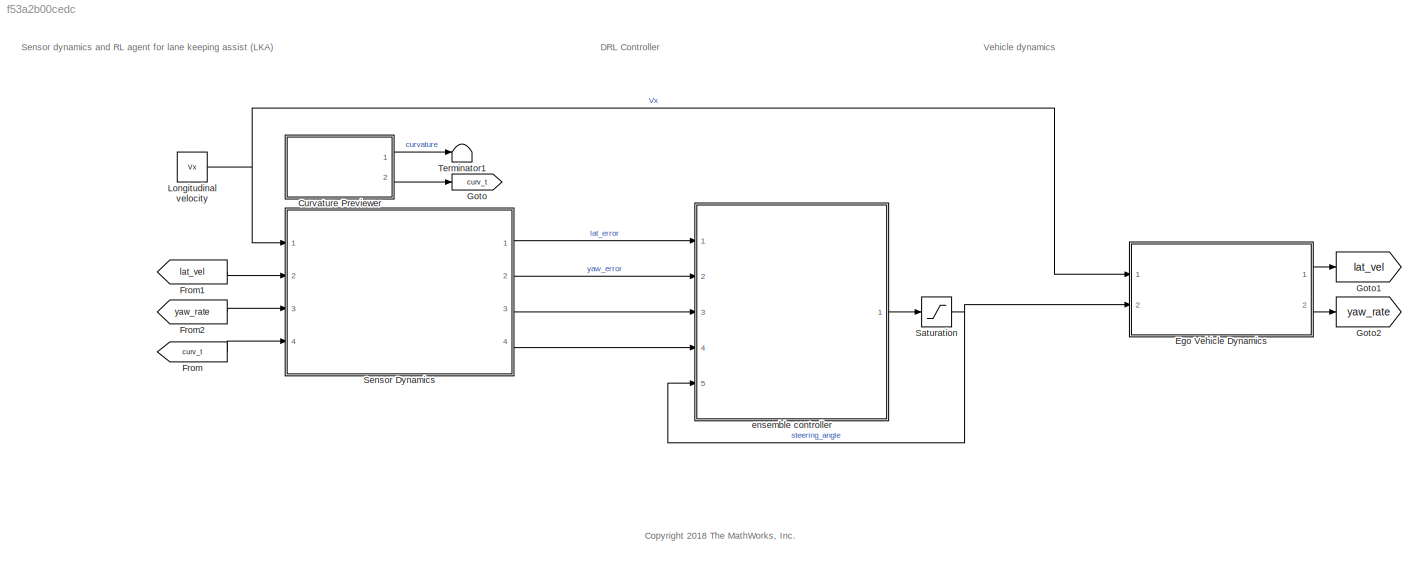
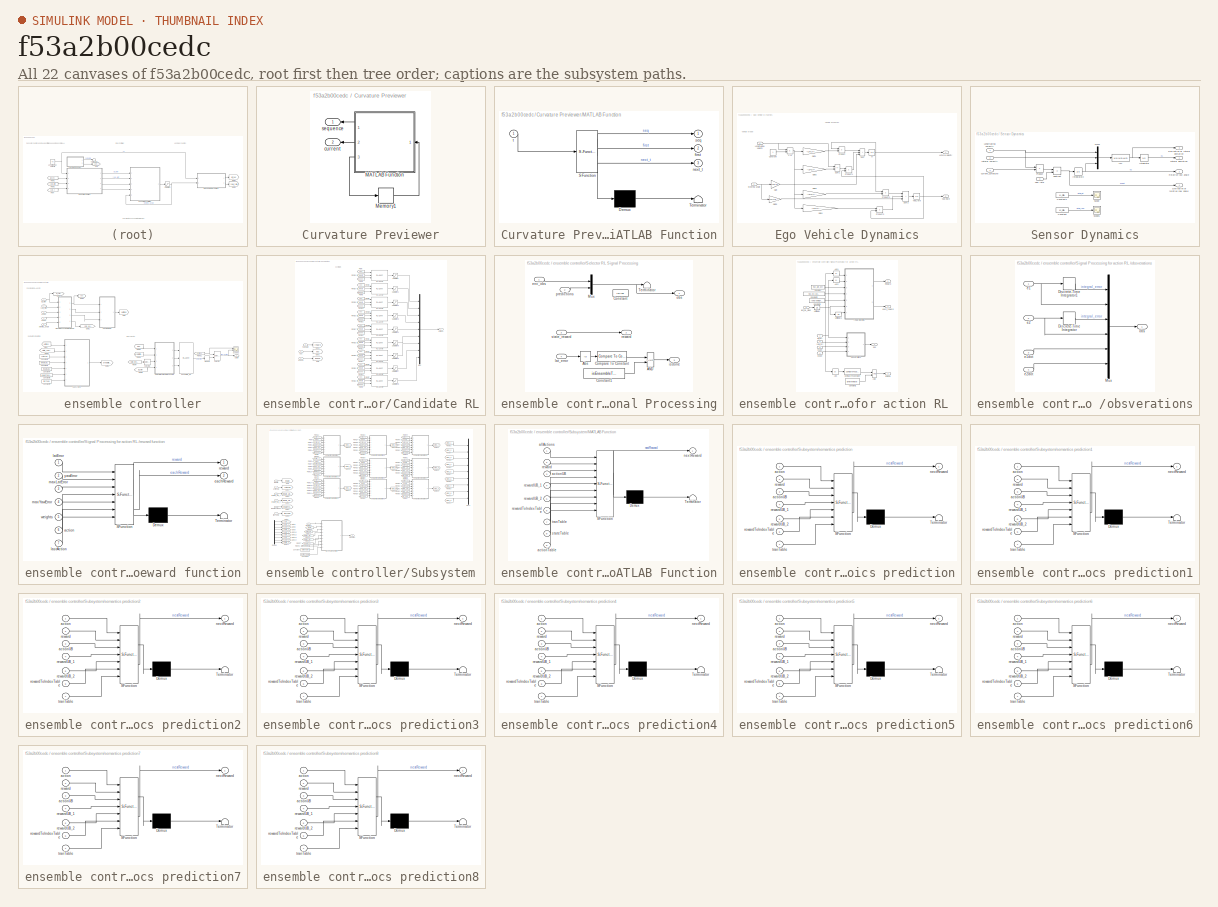
[diagram: thumbnail index - all 22 canvases of the model, root first then tree order]
MODEL slx_f53a2b00cedc
KIND model
CONFIG AbsTol = auto
CONFIG EnableMultiTasking = off
CONFIG FixedStep = Ts
CONFIG MaxStep = auto
CONFIG MinStep = auto
CONFIG RelTol = 1e-3
CONFIG SampleTimeConstraint = Unconstrained
CONFIG SolverName = FixedStepAuto
CONFIG StartTime = 0.0
CONFIG StopTime = T
BLOCK [SubSystem] Curvature Previewer
  Ports = [0, 2]
  RequestExecContextInheritance = off
BLOCK [SubSystem] Curvature Previewer/MATLAB Function
  ErrorFcn = Stateflow.Translate.translate
  PermitHierarchicalResolution = ExplicitOnly
  Ports = [1, 3]
  RequestExecContextInheritance = off
  SFBlockType = MATLAB Function
  TreatAsAtomicUnit = on
BLOCK [Demux] Curvature Previewer/MATLAB Function/ Demux 
  Outputs = 1
  Ports = [1, 1]
BLOCK [S-Function] Curvature Previewer/MATLAB Function/ SFunction 
  EnableBusSupport = on
  FunctionName = sf_sfun
  Parameters = data,steps
  PortCounts = [1 4]
  Ports = [1, 4]
  SFcnIsStateOwnerBlock = off
  SFunctionDeploymentMode = off
  Tag = Stateflow S-Function 2
BLOCK [Terminator] Curvature Previewer/MATLAB Function/ Terminator 
BLOCK [Outport] Curvature Previewer/MATLAB Function/first
  Port = 2
  VectorParamsAs1DForOutWhenUnconnected = off
BLOCK [Outport] Curvature Previewer/MATLAB Function/next_t
  Port = 3
  VectorParamsAs1DForOutWhenUnconnected = off
BLOCK [Outport] Curvature Previewer/MATLAB Function/seq
  VectorParamsAs1DForOutWhenUnconnected = off
BLOCK [Inport] Curvature Previewer/MATLAB Function/t
BLOCK [Memory] Curvature Previewer/Memory1
  InheritSampleTime = on
  LinearizeAsDelay = on
BLOCK [Outport] Curvature Previewer/current
  Port = 2
  VectorParamsAs1DForOutWhenUnconnected = off
BLOCK [Outport] Curvature Previewer/sequence
  VectorParamsAs1DForOutWhenUnconnected = off
BLOCK [SubSystem] Ego Vehicle Dynamics
  Ports = [2, 2]
  RequestExecContextInheritance = off
BLOCK [Product] Ego Vehicle Dynamics/1//Vx
  Inputs = /*
  Ports = [2, 1]
BLOCK [Constant] Ego Vehicle Dynamics/Constant
BLOCK [Gain] Ego Vehicle Dynamics/Gain
  Gain = 2*Cf/m
BLOCK [Gain] Ego Vehicle Dynamics/Gain1
  Gain = -(2*Cf+2*Cr)/m
BLOCK [Gain] Ego Vehicle Dynamics/Gain2
  Gain = -(2*Cf*lf-2*Cr*lr)/m
BLOCK [Gain] Ego Vehicle Dynamics/Gain3
  Gain = -(2*Cf*lf-2*Cr*lr)/Iz
BLOCK [Gain] Ego Vehicle Dynamics/Gain4
  Gain = -(2*Cf*lf^2+2*Cr*lr^2)/Iz
BLOCK [Gain] Ego Vehicle Dynamics/Gain5
  Gain = 2*Cf*lf/Iz
BLOCK [Outport] Ego Vehicle Dynamics/Lateral Velocity
  VectorParamsAs1DForOutWhenUnconnected = off
BLOCK [Inport] Ego Vehicle Dynamics/Longitudinal velocity
BLOCK [Product] Ego Vehicle Dynamics/Product
  Ports = [2, 1]
BLOCK [Product] Ego Vehicle Dynamics/Product1
  Ports = [2, 1]
BLOCK [Product] Ego Vehicle Dynamics/Product2
  Ports = [2, 1]
BLOCK [Product] Ego Vehicle Dynamics/Product3
  Ports = [2, 1]
BLOCK [Inport] Ego Vehicle Dynamics/Steering angle
  Port = 2
BLOCK [Sum] Ego Vehicle Dynamics/Sum
  IconShape = rectangular
  Inputs = +++
  Ports = [3, 1]
BLOCK [Sum] Ego Vehicle Dynamics/Sum1
  IconShape = rectangular
  Inputs = -+
  Ports = [2, 1]
BLOCK [Sum] Ego Vehicle Dynamics/Sum2
  IconShape = rectangular
  Inputs = +++
  Ports = [3, 1]
BLOCK [Integrator] Ego Vehicle Dynamics/Vy
  Ports = [1, 1]
BLOCK [Outport] Ego Vehicle Dynamics/Yaw Rate
  Port = 2
  VectorParamsAs1DForOutWhenUnconnected = off
BLOCK [Integrator] Ego Vehicle Dynamics/Yaw_rate 
  Ports = [1, 1]
BLOCK [From] From
  GotoTag = curv_t
BLOCK [From] From1
  GotoTag = lat_vel
BLOCK [From] From2
  GotoTag = yaw_rate
BLOCK [Goto] Goto
  GotoTag = curv_t
BLOCK [Goto] Goto1
  GotoTag = lat_vel
BLOCK [Goto] Goto2
  GotoTag = yaw_rate
BLOCK [Constant] Longitudinal velocity
  SampleTime = Ts
  Value = Vx
BLOCK [Saturate] Saturation
  LowerLimit = u_min
  UpperLimit = u_max
BLOCK [SubSystem] Sensor Dynamics
  Ports = [4, 4]
  RequestExecContextInheritance = off
BLOCK [Constant] Sensor Dynamics/Constant
  Commented = on
  Value = e2_initial
BLOCK [Constant] Sensor Dynamics/Constant1
  Commented = on
  Value = e1_initial
BLOCK [Outport] Sensor Dynamics/Derivative of lateral deviation
  Port = 3
  VectorParamsAs1DForOutWhenUnconnected = off
BLOCK [Outport] Sensor Dynamics/Derivative of relative yaw angle
  Port = 4
  VectorParamsAs1DForOutWhenUnconnected = off
BLOCK [Integrator] Sensor Dynamics/Integrator
  InitialCondition = e1_initial
  Ports = [1, 1]
BLOCK [Integrator] Sensor Dynamics/Integrator2
  InitialCondition = e2_initial
  Ports = [1, 1]
BLOCK [Outport] Sensor Dynamics/Lateral deviation
  VectorParamsAs1DForOutWhenUnconnected = off
BLOCK [Inport] Sensor Dynamics/Lateral velocity
  Port = 2
BLOCK [Inport] Sensor Dynamics/Longitudinal velocity
BLOCK [Mux] Sensor Dynamics/Mux1
  DisplayOption = bar
  Inputs = [1 1 1]
  Ports = [3, 1]
BLOCK [Product] Sensor Dynamics/Product
  Ports = [2, 1]
BLOCK [Outport] Sensor Dynamics/Relative yaw angle
  Port = 2
  VectorParamsAs1DForOutWhenUnconnected = off
BLOCK [Scope] Sensor Dynamics/Scope
  Commented = on
  Floating = off
  NumInputPorts = 1
  Ports = [1]
  ScopeSpecificationString = Simulink.scopes.TimeScopeBlockCfg('CurrentConfiguration', extmgr.ConfigurationSet(extmgr.Configuration('Core','General UI',true),extmgr.Configuration('Core','Source UI',true),extmgr.Configuration('Sources','WiredSimulink',true),extmgr.Configuration('Visuals','Time Domain',true),extmgr.Configuration('Tools','Plot Navigation',true),extmgr.Configuration('Tools','Measurements',true)),'Version','2021a'...<+1ch>
BLOCK [Scope] Sensor Dynamics/Scope1
  Commented = on
  Floating = off
  NumInputPorts = 1
  Ports = [1]
  ScopeSpecificationString = Simulink.scopes.TimeScopeBlockCfg('CurrentConfiguration', extmgr.ConfigurationSet(extmgr.Configuration('Core','General UI',true),extmgr.Configuration('Core','Source UI',true),extmgr.Configuration('Sources','WiredSimulink',true,'DataLoggingVariableName','ScopeData1'),extmgr.Configuration('Visuals','Time Domain',true),extmgr.Configuration('Tools','Plot Navigation',true),extmgr.Configuration('Tools',...<+40ch>
BLOCK [Sum] Sensor Dynamics/Subtract
  IconShape = rectangular
  Inputs = -+
  Ports = [2, 1]
BLOCK [Inport] Sensor Dynamics/Yaw rate
  Port = 3
BLOCK [Inport] Sensor Dynamics/current_curvature
  Port = 4
BLOCK [Fcn] Sensor Dynamics/fcn
  Expr = u(1)*u(3)+u(2)
BLOCK [Terminator] Terminator1
BLOCK [SubSystem] ensemble controller
  Ports = [5, 1]
  RequestExecContextInheritance = off
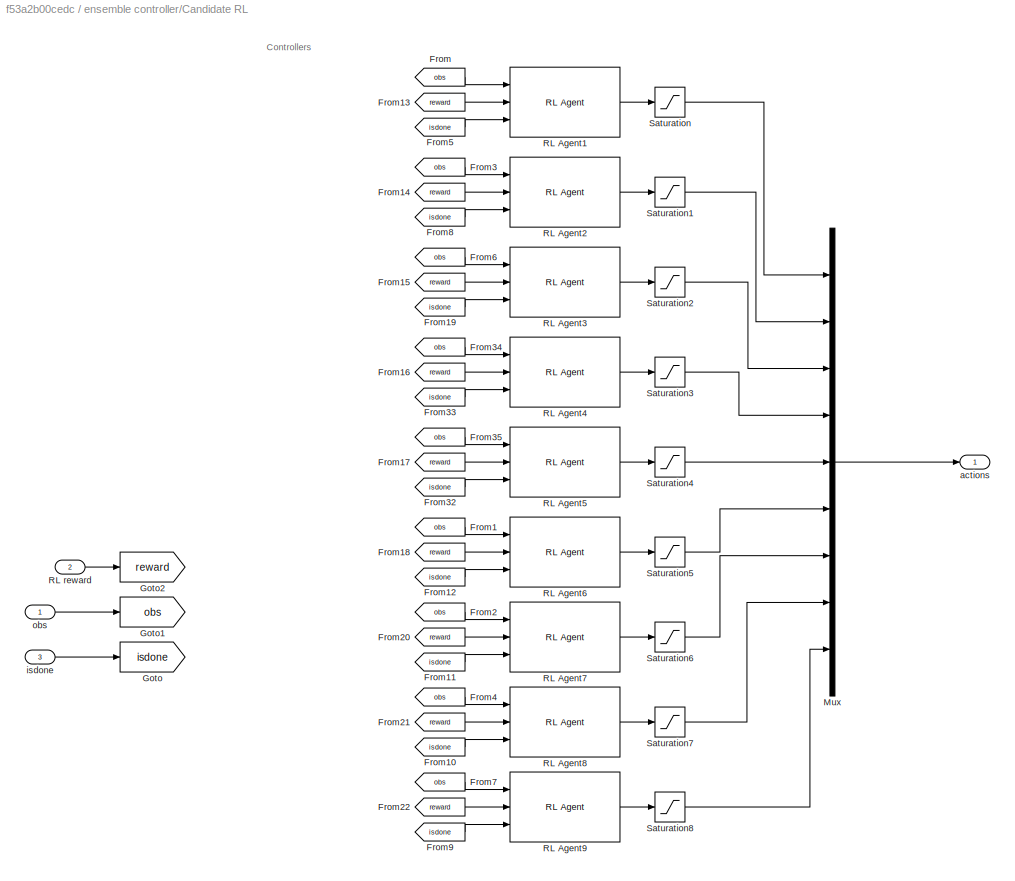
BLOCK [SubSystem] ensemble controller/Candidate RL
  Ports = [3, 1]
  RequestExecContextInheritance = off
BLOCK [From] ensemble controller/Candidate RL/From
  GotoTag = obs
BLOCK [From] ensemble controller/Candidate RL/From1
  GotoTag = obs
BLOCK [From] ensemble controller/Candidate RL/From10
  GotoTag = isdone
BLOCK [From] ensemble controller/Candidate RL/From11
  GotoTag = isdone
BLOCK [From] ensemble controller/Candidate RL/From12
  GotoTag = isdone
BLOCK [From] ensemble controller/Candidate RL/From13
  GotoTag = reward
BLOCK [From] ensemble controller/Candidate RL/From14
  GotoTag = reward
BLOCK [From] ensemble controller/Candidate RL/From15
  GotoTag = reward
BLOCK [From] ensemble controller/Candidate RL/From16
  GotoTag = reward
BLOCK [From] ensemble controller/Candidate RL/From17
  GotoTag = reward
BLOCK [From] ensemble controller/Candidate RL/From18
  GotoTag = reward
BLOCK [From] ensemble controller/Candidate RL/From19
  GotoTag = isdone
BLOCK [From] ensemble controller/Candidate RL/From2
  GotoTag = obs
BLOCK [From] ensemble controller/Candidate RL/From20
  GotoTag = reward
BLOCK [From] ensemble controller/Candidate RL/From21
  GotoTag = reward
BLOCK [From] ensemble controller/Candidate RL/From22
  GotoTag = reward
BLOCK [From] ensemble controller/Candidate RL/From3
  GotoTag = obs
BLOCK [From] ensemble controller/Candidate RL/From32
  GotoTag = isdone
BLOCK [From] ensemble controller/Candidate RL/From33
  GotoTag = isdone
BLOCK [From] ensemble controller/Candidate RL/From34
  GotoTag = obs
BLOCK [From] ensemble controller/Candidate RL/From35
  GotoTag = obs
BLOCK [From] ensemble controller/Candidate RL/From4
  GotoTag = obs
BLOCK [From] ensemble controller/Candidate RL/From5
  GotoTag = isdone
BLOCK [From] ensemble controller/Candidate RL/From6
  GotoTag = obs
BLOCK [From] ensemble controller/Candidate RL/From7
  GotoTag = obs
BLOCK [From] ensemble controller/Candidate RL/From8
  GotoTag = isdone
BLOCK [From] ensemble controller/Candidate RL/From9
  GotoTag = isdone
BLOCK [Goto] ensemble controller/Candidate RL/Goto
  GotoTag = isdone
BLOCK [Goto] ensemble controller/Candidate RL/Goto1
  GotoTag = obs
BLOCK [Goto] ensemble controller/Candidate RL/Goto2
  GotoTag = reward
BLOCK [Mux] ensemble controller/Candidate RL/Mux
  DisplayOption = bar
  Inputs = 9
  Ports = [9, 1]
BLOCK [Reference] ensemble controller/Candidate RL/RL Agent1  REF=rllib/RL Agent
  Ports = [3, 1]
  SourceBlock = rllib/RL Agent
  SourceProductBaseCode = RL
  SourceType = RL Agent
BLOCK [Reference] ensemble controller/Candidate RL/RL Agent2  REF=rllib/RL Agent
  Ports = [3, 1]
  SourceBlock = rllib/RL Agent
  SourceProductBaseCode = RL
  SourceType = RL Agent
BLOCK [Reference] ensemble controller/Candidate RL/RL Agent3  REF=rllib/RL Agent
  Ports = [3, 1]
  SourceBlock = rllib/RL Agent
  SourceProductBaseCode = RL
  SourceType = RL Agent
BLOCK [Reference] ensemble controller/Candidate RL/RL Agent4  REF=rllib/RL Agent
  Ports = [3, 1]
  SourceBlock = rllib/RL Agent
  SourceProductBaseCode = RL
  SourceType = RL Agent
BLOCK [Reference] ensemble controller/Candidate RL/RL Agent5  REF=rllib/RL Agent
  Ports = [3, 1]
  SourceBlock = rllib/RL Agent
  SourceProductBaseCode = RL
  SourceType = RL Agent
BLOCK [Reference] ensemble controller/Candidate RL/RL Agent6  REF=rllib/RL Agent
  Ports = [3, 1]
  SourceBlock = rllib/RL Agent
  SourceProductBaseCode = RL
  SourceType = RL Agent
BLOCK [Reference] ensemble controller/Candidate RL/RL Agent7  REF=rllib/RL Agent
  Ports = [3, 1]
  SourceBlock = rllib/RL Agent
  SourceProductBaseCode = RL
  SourceType = RL Agent
BLOCK [Reference] ensemble controller/Candidate RL/RL Agent8  REF=rllib/RL Agent
  Ports = [3, 1]
  SourceBlock = rllib/RL Agent
  SourceProductBaseCode = RL
  SourceType = RL Agent
BLOCK [Reference] ensemble controller/Candidate RL/RL Agent9  REF=rllib/RL Agent
  Ports = [3, 1]
  SourceBlock = rllib/RL Agent
  SourceProductBaseCode = RL
  SourceType = RL Agent
BLOCK [Inport] ensemble controller/Candidate RL/RL reward
  Port = 2
BLOCK [Saturate] ensemble controller/Candidate RL/Saturation
  LowerLimit = u_min
  UpperLimit = u_max
BLOCK [Saturate] ensemble controller/Candidate RL/Saturation1
  LowerLimit = u_min
  UpperLimit = u_max
BLOCK [Saturate] ensemble controller/Candidate RL/Saturation2
  LowerLimit = u_min
  UpperLimit = u_max
BLOCK [Saturate] ensemble controller/Candidate RL/Saturation3
  LowerLimit = u_min
  UpperLimit = u_max
BLOCK [Saturate] ensemble controller/Candidate RL/Saturation4
  LowerLimit = u_min
  UpperLimit = u_max
BLOCK [Saturate] ensemble controller/Candidate RL/Saturation5
  LowerLimit = u_min
  UpperLimit = u_max
BLOCK [Saturate] ensemble controller/Candidate RL/Saturation6
  LowerLimit = u_min
  UpperLimit = u_max
BLOCK [Saturate] ensemble controller/Candidate RL/Saturation7
  LowerLimit = u_min
  UpperLimit = u_max
BLOCK [Saturate] ensemble controller/Candidate RL/Saturation8
  LowerLimit = u_min
  UpperLimit = u_max
BLOCK [Outport] ensemble controller/Candidate RL/actions
BLOCK [Inport] ensemble controller/Candidate RL/isdone
  Port = 3
BLOCK [Inport] ensemble controller/Candidate RL/obs
BLOCK [Constant] ensemble controller/Constant5
  Value = actionUB
BLOCK [Constant] ensemble controller/Constant6
  Value = rewardUB1
BLOCK [Constant] ensemble controller/Constant7
  Value = rewardUB2
BLOCK [Constant] ensemble controller/Constant8
  Value = rewardToIndex
BLOCK [Constant] ensemble controller/Constant9
  Value = tranTable
BLOCK [From] ensemble controller/From
  GotoTag = actions
BLOCK [From] ensemble controller/From1
  GotoTag = state_reward
BLOCK [From] ensemble controller/From2
  GotoTag = obs
BLOCK [From] ensemble controller/From3
  GotoTag = predictions
BLOCK [From] ensemble controller/From31
  GotoTag = actions
BLOCK [From] ensemble controller/From4
  GotoTag = state_reward
BLOCK [From] ensemble controller/From5
  GotoTag = lat_error
BLOCK [Goto] ensemble controller/Goto
  GotoTag = actions
BLOCK [Goto] ensemble controller/Goto1
  GotoTag = state_reward
BLOCK [Goto] ensemble controller/Goto2
  GotoTag = predictions
BLOCK [Goto] ensemble controller/Goto3
  GotoTag = obs
BLOCK [Goto] ensemble controller/Goto4
  GotoTag = lat_error
BLOCK [Rounding] ensemble controller/Round
  Operator = round
BLOCK [Scope] ensemble controller/Scope2
  Floating = off
  NumInputPorts = 2
  Ports = [2]
  ScopeSpecificationString = Simulink.scopes.TimeScopeBlockCfg('CurrentConfiguration', extmgr.ConfigurationSet(extmgr.Configuration('Core','General UI',true),extmgr.Configuration('Core','Source UI',true),extmgr.Configuration('Sources','WiredSimulink',true,'DataLoggingVariableName','ScopeData2'),extmgr.Configuration('Visuals','Time Domain',true,'SerializedDisplays',{struct('MinYLimReal','-3.625','MaxYLimReal','2.625','YLabelRe...<+2128ch>
BLOCK [Selector] ensemble controller/Selector
  IndexOptions = Index vector (port)
  Indices = [1 3]
  OutputSizes = 1
  Ports = [2, 1]
BLOCK [SubSystem] ensemble controller/Selector RL Signal Processing
  Ports = [4, 3]
  RequestExecContextInheritance = off
BLOCK [Logic] ensemble controller/Selector RL Signal Processing/AND
  AllPortsSameDT = off
  IconShape = distinctive
  OutDataTypeStr = boolean
  Ports = [2, 1]
BLOCK [Abs] ensemble controller/Selector RL Signal Processing/Abs
  SaturateOnIntegerOverflow = off
BLOCK [Reference] ensemble controller/Selector RL Signal Processing/Compare To Constant  REF=simulink/Logic and Bit
Operations/Compare
To Constant
  Ports = [1, 1]
  SourceBlock = simulink/Logic and Bit\nOperations/Compare\nTo Constant
  SourceProductBaseCode = SL
  SourceType = Compare To Constant
BLOCK [Constant] ensemble controller/Selector RL Signal Processing/Constant
  Commented = on
  Value = isPred
BLOCK [Constant] ensemble controller/Selector RL Signal Processing/Constant1
  Value = isEnsembleTerminate
BLOCK [Mux] ensemble controller/Selector RL Signal Processing/Mux
  DisplayOption = bar
  Inputs = 2
  Ports = [2, 1]
BLOCK [Terminator] ensemble controller/Selector RL Signal Processing/Terminator
BLOCK [Inport] ensemble controller/Selector RL Signal Processing/env_obs
BLOCK [Outport] ensemble controller/Selector RL Signal Processing/isdone
  Port = 3
BLOCK [Inport] ensemble controller/Selector RL Signal Processing/lat_error
  Port = 4
BLOCK [Outport] ensemble controller/Selector RL Signal Processing/obs
BLOCK [Inport] ensemble controller/Selector RL Signal Processing/predictions
  Port = 2
BLOCK [Outport] ensemble controller/Selector RL Signal Processing/reward
  Port = 2
BLOCK [Inport] ensemble controller/Selector RL Signal Processing/state_reward
  Port = 3
BLOCK [Selector] ensemble controller/Selector1
  IndexOptions = Index vector (dialog)
  Indices = [3]
  InputPortWidth = 3
  OutputSizes = 1
  Ports = [1, 1]
BLOCK [SubSystem] ensemble controller/Signal Processing for action RL 
  Ports = [5, 4]
  RequestExecContextInheritance = off
BLOCK [Logic] ensemble controller/Signal Processing for action RL /AND
  AllPortsSameDT = off
  IconShape = distinctive
  OutDataTypeStr = boolean
  Ports = [2, 1]
BLOCK [Abs] ensemble controller/Signal Processing for action RL /Abs
  SaturateOnIntegerOverflow = off
BLOCK [Abs] ensemble controller/Signal Processing for action RL /Abs1
  SaturateOnIntegerOverflow = off
BLOCK [Abs] ensemble controller/Signal Processing for action RL /Abs2
  SaturateOnIntegerOverflow = off
BLOCK [Reference] ensemble controller/Signal Processing for action RL /Compare To Constant  REF=simulink/Logic and Bit
Operations/Compare
To Constant
  Ports = [1, 1]
  SourceBlock = simulink/Logic and Bit\nOperations/Compare\nTo Constant
  SourceProductBaseCode = SL
  SourceType = Compare To Constant
BLOCK [Constant] ensemble controller/Signal Processing for action RL /Constant
  Value = max_late_dev
BLOCK [Constant] ensemble controller/Signal Processing for action RL /Constant1
  Value = isTerminate
BLOCK [Constant] ensemble controller/Signal Processing for action RL /Constant2
  Value = max_rel_yaw_ang
BLOCK [Constant] ensemble controller/Signal Processing for action RL /Constant3
  Value = rewardWeights
BLOCK [Outport] ensemble controller/Signal Processing for action RL /Reward
  Port = 2
  VectorParamsAs1DForOutWhenUnconnected = off
BLOCK [UnitDelay] ensemble controller/Signal Processing for action RL /Unit Delay
  HasFrameUpgradeWarning = on
  SampleTime = -1
BLOCK [UnitDelay] ensemble controller/Signal Processing for action RL /Unit Delay1
  HasFrameUpgradeWarning = on
  SampleTime = -1
BLOCK [Inport] ensemble controller/Signal Processing for action RL /e1dot 
  Port = 3
BLOCK [Inport] ensemble controller/Signal Processing for action RL /e2dot
  Port = 4
BLOCK [Outport] ensemble controller/Signal Processing for action RL /each_reward
  Port = 4
BLOCK [Outport] ensemble controller/Signal Processing for action RL /isDone
  Port = 3
  VectorParamsAs1DForOutWhenUnconnected = off
BLOCK [Inport] ensemble controller/Signal Processing for action RL /last_RL_steer
  Port = 5
BLOCK [Inport] ensemble controller/Signal Processing for action RL /lat_err
BLOCK [Outport] ensemble controller/Signal Processing for action RL /obs
  VectorParamsAs1DForOutWhenUnconnected = off
BLOCK [SubSystem] ensemble controller/Signal Processing for action RL /obsverations
  Ports = [4, 1]
  RequestExecContextInheritance = off
BLOCK [DiscreteIntegrator] ensemble controller/Signal Processing for action RL /obsverations/Discrete-Time Integrator
  ICPrevOutput = DiscIntNeverNeededParam
  ICPrevScaledInput = DiscIntNeverNeededParam
  InitialConditionSetting = Auto
  Ports = [1, 1]
  SampleTime = -1
BLOCK [DiscreteIntegrator] ensemble controller/Signal Processing for action RL /obsverations/Discrete-Time Integrator1
  ICPrevOutput = DiscIntNeverNeededParam
  ICPrevScaledInput = DiscIntNeverNeededParam
  InitialConditionSetting = Auto
  Ports = [1, 1]
  SampleTime = -1
BLOCK [Mux] ensemble controller/Signal Processing for action RL /obsverations/Mux
  DisplayOption = bar
  Inputs = 6
  Ports = [6, 1]
BLOCK [Inport] ensemble controller/Signal Processing for action RL /obsverations/e1
BLOCK [Inport] ensemble controller/Signal Processing for action RL /obsverations/e1dot
  Port = 3
BLOCK [Inport] ensemble controller/Signal Processing for action RL /obsverations/e2
  Port = 2
BLOCK [Inport] ensemble controller/Signal Processing for action RL /obsverations/e2dot
  Port = 4
BLOCK [Outport] ensemble controller/Signal Processing for action RL /obsverations/obs
  VectorParamsAs1DForOutWhenUnconnected = off
BLOCK [SubSystem] ensemble controller/Signal Processing for action RL /reward function
  ErrorFcn = Stateflow.Translate.translate
  PermitHierarchicalResolution = ExplicitOnly
  Ports = [7, 2]
  RequestExecContextInheritance = off
  SFBlockType = MATLAB Function
  TreatAsAtomicUnit = on
BLOCK [Demux] ensemble controller/Signal Processing for action RL /reward function/ Demux 
  Outputs = 1
  Ports = [1, 1]
BLOCK [S-Function] ensemble controller/Signal Processing for action RL /reward function/ SFunction 
  EnableBusSupport = on
  FunctionName = sf_sfun
  PortCounts = [7 3]
  Ports = [7, 3]
  SFcnIsStateOwnerBlock = off
  SFunctionDeploymentMode = off
  Tag = Stateflow S-Function 1
BLOCK [Terminator] ensemble controller/Signal Processing for action RL /reward function/ Terminator 
BLOCK [Inport] ensemble controller/Signal Processing for action RL /reward function/action
  Port = 6
BLOCK [Outport] ensemble controller/Signal Processing for action RL /reward function/eachReward
  Port = 2
BLOCK [Inport] ensemble controller/Signal Processing for action RL /reward function/lastAction
  Port = 7
BLOCK [Inport] ensemble controller/Signal Processing for action RL /reward function/latError
BLOCK [Inport] ensemble controller/Signal Processing for action RL /reward function/maxLatError
  Port = 3
BLOCK [Inport] ensemble controller/Signal Processing for action RL /reward function/maxYawError
  Port = 4
BLOCK [Outport] ensemble controller/Signal Processing for action RL /reward function/reward
BLOCK [Inport] ensemble controller/Signal Processing for action RL /reward function/weights
  Port = 5
BLOCK [Inport] ensemble controller/Signal Processing for action RL /reward function/yawError
  Port = 2
BLOCK [Inport] ensemble controller/Signal Processing for action RL /yaw_err
  Port = 2
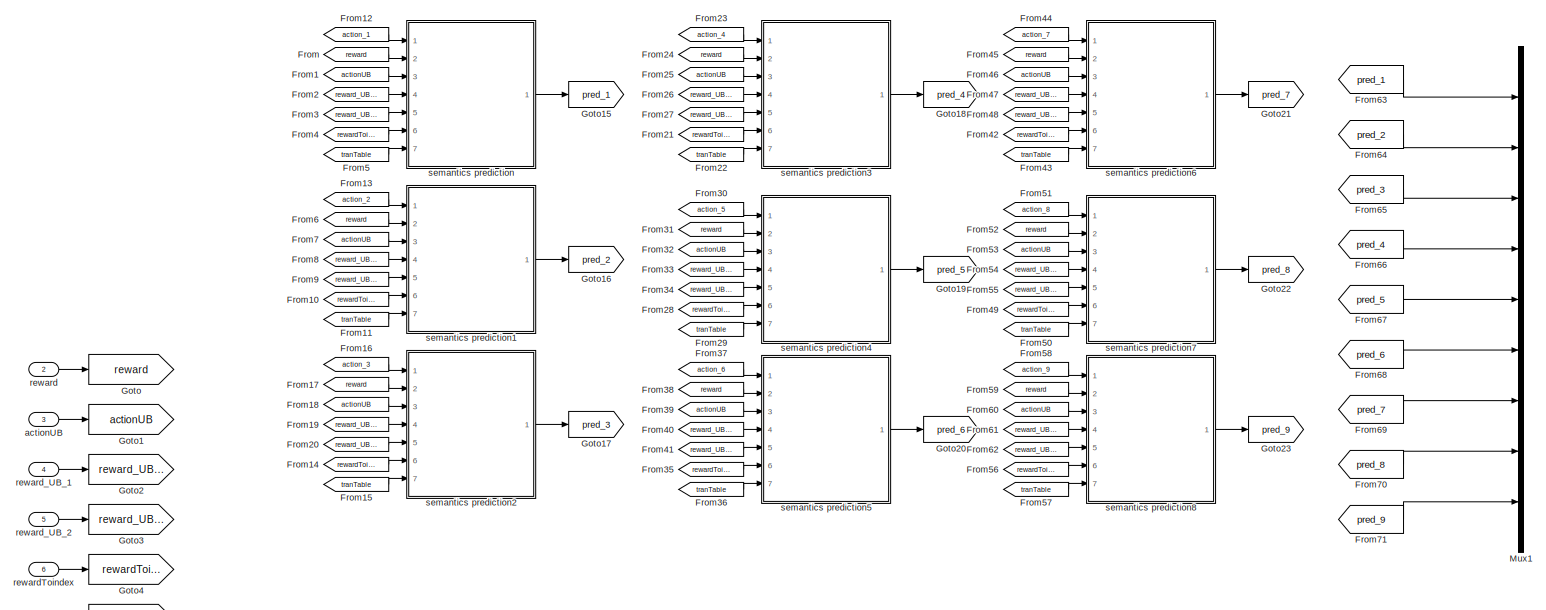
[diagram: ensemble controller/Subsystem - part 1/2, full width, top band]
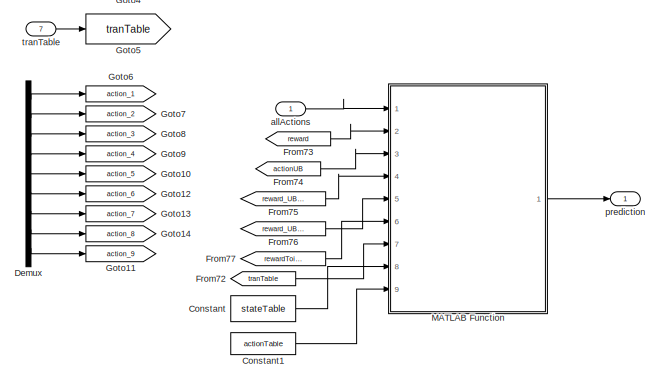
[diagram: ensemble controller/Subsystem - part 2/2, bottom left region]
BLOCK [SubSystem] ensemble controller/Subsystem
  Ports = [7, 1]
  RequestExecContextInheritance = off
BLOCK [Constant] ensemble controller/Subsystem/Constant
  Value = stateTable
BLOCK [Constant] ensemble controller/Subsystem/Constant1
  Value = actionTable
BLOCK [Demux] ensemble controller/Subsystem/Demux
  Commented = on
  Outputs = 9
  Ports = [1, 9]
BLOCK [From] ensemble controller/Subsystem/From
  Commented = on
  GotoTag = reward
BLOCK [From] ensemble controller/Subsystem/From1
  Commented = on
  GotoTag = actionUB
BLOCK [From] ensemble controller/Subsystem/From10
  Commented = on
  GotoTag = rewardToindex
BLOCK [From] ensemble controller/Subsystem/From11
  Commented = on
  GotoTag = tranTable
BLOCK [From] ensemble controller/Subsystem/From12
  Commented = on
  GotoTag = action_1
BLOCK [From] ensemble controller/Subsystem/From13
  Commented = on
  GotoTag = action_2
BLOCK [From] ensemble controller/Subsystem/From14
  Commented = on
  GotoTag = rewardToindex
BLOCK [From] ensemble controller/Subsystem/From15
  Commented = on
  GotoTag = tranTable
BLOCK [From] ensemble controller/Subsystem/From16
  Commented = on
  GotoTag = action_3
BLOCK [From] ensemble controller/Subsystem/From17
  Commented = on
  GotoTag = reward
BLOCK [From] ensemble controller/Subsystem/From18
  Commented = on
  GotoTag = actionUB
BLOCK [From] ensemble controller/Subsystem/From19
  Commented = on
  GotoTag = reward_UB_1
BLOCK [From] ensemble controller/Subsystem/From2
  Commented = on
  GotoTag = reward_UB_1
BLOCK [From] ensemble controller/Subsystem/From20
  Commented = on
  GotoTag = reward_UB_2
BLOCK [From] ensemble controller/Subsystem/From21
  Commented = on
  GotoTag = rewardToindex
BLOCK [From] ensemble controller/Subsystem/From22
  Commented = on
  GotoTag = tranTable
BLOCK [From] ensemble controller/Subsystem/From23
  Commented = on
  GotoTag = action_4
BLOCK [From] ensemble controller/Subsystem/From24
  Commented = on
  GotoTag = reward
BLOCK [From] ensemble controller/Subsystem/From25
  Commented = on
  GotoTag = actionUB
BLOCK [From] ensemble controller/Subsystem/From26
  Commented = on
  GotoTag = reward_UB_1
BLOCK [From] ensemble controller/Subsystem/From27
  Commented = on
  GotoTag = reward_UB_2
BLOCK [From] ensemble controller/Subsystem/From28
  Commented = on
  GotoTag = rewardToindex
BLOCK [From] ensemble controller/Subsystem/From29
  Commented = on
  GotoTag = tranTable
BLOCK [From] ensemble controller/Subsystem/From3
  Commented = on
  GotoTag = reward_UB_2
BLOCK [From] ensemble controller/Subsystem/From30
  Commented = on
  GotoTag = action_5
BLOCK [From] ensemble controller/Subsystem/From31
  Commented = on
  GotoTag = reward
BLOCK [From] ensemble controller/Subsystem/From32
  Commented = on
  GotoTag = actionUB
BLOCK [From] ensemble controller/Subsystem/From33
  Commented = on
  GotoTag = reward_UB_1
BLOCK [From] ensemble controller/Subsystem/From34
  Commented = on
  GotoTag = reward_UB_2
BLOCK [From] ensemble controller/Subsystem/From35
  Commented = on
  GotoTag = rewardToindex
BLOCK [From] ensemble controller/Subsystem/From36
  Commented = on
  GotoTag = tranTable
BLOCK [From] ensemble controller/Subsystem/From37
  Commented = on
  GotoTag = action_6
BLOCK [From] ensemble controller/Subsystem/From38
  Commented = on
  GotoTag = reward
BLOCK [From] ensemble controller/Subsystem/From39
  Commented = on
  GotoTag = actionUB
BLOCK [From] ensemble controller/Subsystem/From4
  Commented = on
  GotoTag = rewardToindex
BLOCK [From] ensemble controller/Subsystem/From40
  Commented = on
  GotoTag = reward_UB_1
BLOCK [From] ensemble controller/Subsystem/From41
  Commented = on
  GotoTag = reward_UB_2
BLOCK [From] ensemble controller/Subsystem/From42
  Commented = on
  GotoTag = rewardToindex
BLOCK [From] ensemble controller/Subsystem/From43
  Commented = on
  GotoTag = tranTable
BLOCK [From] ensemble controller/Subsystem/From44
  Commented = on
  GotoTag = action_7
BLOCK [From] ensemble controller/Subsystem/From45
  Commented = on
  GotoTag = reward
BLOCK [From] ensemble controller/Subsystem/From46
  Commented = on
  GotoTag = actionUB
BLOCK [From] ensemble controller/Subsystem/From47
  Commented = on
  GotoTag = reward_UB_1
BLOCK [From] ensemble controller/Subsystem/From48
  Commented = on
  GotoTag = reward_UB_2
BLOCK [From] ensemble controller/Subsystem/From49
  Commented = on
  GotoTag = rewardToindex
BLOCK [From] ensemble controller/Subsystem/From5
  Commented = on
  GotoTag = tranTable
BLOCK [From] ensemble controller/Subsystem/From50
  Commented = on
  GotoTag = tranTable
BLOCK [From] ensemble controller/Subsystem/From51
  Commented = on
  GotoTag = action_8
BLOCK [From] ensemble controller/Subsystem/From52
  Commented = on
  GotoTag = reward
BLOCK [From] ensemble controller/Subsystem/From53
  Commented = on
  GotoTag = actionUB
BLOCK [From] ensemble controller/Subsystem/From54
  Commented = on
  GotoTag = reward_UB_1
BLOCK [From] ensemble controller/Subsystem/From55
  Commented = on
  GotoTag = reward_UB_2
BLOCK [From] ensemble controller/Subsystem/From56
  Commented = on
  GotoTag = rewardToindex
BLOCK [From] ensemble controller/Subsystem/From57
  Commented = on
  GotoTag = tranTable
BLOCK [From] ensemble controller/Subsystem/From58
  Commented = on
  GotoTag = action_9
BLOCK [From] ensemble controller/Subsystem/From59
  Commented = on
  GotoTag = reward
BLOCK [From] ensemble controller/Subsystem/From6
  Commented = on
  GotoTag = reward
BLOCK [From] ensemble controller/Subsystem/From60
  Commented = on
  GotoTag = actionUB
BLOCK [From] ensemble controller/Subsystem/From61
  Commented = on
  GotoTag = reward_UB_1
BLOCK [From] ensemble controller/Subsystem/From62
  Commented = on
  GotoTag = reward_UB_2
BLOCK [From] ensemble controller/Subsystem/From63
  Commented = on
  GotoTag = pred_1
BLOCK [From] ensemble controller/Subsystem/From64
  Commented = on
  GotoTag = pred_2
BLOCK [From] ensemble controller/Subsystem/From65
  Commented = on
  GotoTag = pred_3
BLOCK [From] ensemble controller/Subsystem/From66
  Commented = on
  GotoTag = pred_4
BLOCK [From] ensemble controller/Subsystem/From67
  Commented = on
  GotoTag = pred_5
BLOCK [From] ensemble controller/Subsystem/From68
  Commented = on
  GotoTag = pred_6
BLOCK [From] ensemble controller/Subsystem/From69
  Commented = on
  GotoTag = pred_7
BLOCK [From] ensemble controller/Subsystem/From7
  Commented = on
  GotoTag = actionUB
BLOCK [From] ensemble controller/Subsystem/From70
  Commented = on
  GotoTag = pred_8
BLOCK [From] ensemble controller/Subsystem/From71
  Commented = on
  GotoTag = pred_9
BLOCK [From] ensemble controller/Subsystem/From72
  GotoTag = tranTable
BLOCK [From] ensemble controller/Subsystem/From73
  GotoTag = reward
BLOCK [From] ensemble controller/Subsystem/From74
  GotoTag = actionUB
BLOCK [From] ensemble controller/Subsystem/From75
  GotoTag = reward_UB_1
BLOCK [From] ensemble controller/Subsystem/From76
  GotoTag = reward_UB_2
BLOCK [From] ensemble controller/Subsystem/From77
  GotoTag = rewardToindex
BLOCK [From] ensemble controller/Subsystem/From8
  Commented = on
  GotoTag = reward_UB_1
BLOCK [From] ensemble controller/Subsystem/From9
  Commented = on
  GotoTag = reward_UB_2
BLOCK [Goto] ensemble controller/Subsystem/Goto
  GotoTag = reward
BLOCK [Goto] ensemble controller/Subsystem/Goto1
  GotoTag = actionUB
BLOCK [Goto] ensemble controller/Subsystem/Goto10
  Commented = on
  GotoTag = action_5
BLOCK [Goto] ensemble controller/Subsystem/Goto11
  Commented = on
  GotoTag = action_9
BLOCK [Goto] ensemble controller/Subsystem/Goto12
  Commented = on
  GotoTag = action_6
BLOCK [Goto] ensemble controller/Subsystem/Goto13
  Commented = on
  GotoTag = action_7
BLOCK [Goto] ensemble controller/Subsystem/Goto14
  Commented = on
  GotoTag = action_8
BLOCK [Goto] ensemble controller/Subsystem/Goto15
  Commented = on
  GotoTag = pred_1
BLOCK [Goto] ensemble controller/Subsystem/Goto16
  Commented = on
  GotoTag = pred_2
BLOCK [Goto] ensemble controller/Subsystem/Goto17
  Commented = on
  GotoTag = pred_3
BLOCK [Goto] ensemble controller/Subsystem/Goto18
  Commented = on
  GotoTag = pred_4
BLOCK [Goto] ensemble controller/Subsystem/Goto19
  Commented = on
  GotoTag = pred_5
BLOCK [Goto] ensemble controller/Subsystem/Goto2
  GotoTag = reward_UB_1
BLOCK [Goto] ensemble controller/Subsystem/Goto20
  Commented = on
  GotoTag = pred_6
BLOCK [Goto] ensemble controller/Subsystem/Goto21
  Commented = on
  GotoTag = pred_7
BLOCK [Goto] ensemble controller/Subsystem/Goto22
  Commented = on
  GotoTag = pred_8
BLOCK [Goto] ensemble controller/Subsystem/Goto23
  Commented = on
  GotoTag = pred_9
BLOCK [Goto] ensemble controller/Subsystem/Goto3
  GotoTag = reward_UB_2
BLOCK [Goto] ensemble controller/Subsystem/Goto4
  GotoTag = rewardToindex
BLOCK [Goto] ensemble controller/Subsystem/Goto5
  GotoTag = tranTable
BLOCK [Goto] ensemble controller/Subsystem/Goto6
  Commented = on
  GotoTag = action_1
BLOCK [Goto] ensemble controller/Subsystem/Goto7
  Commented = on
  GotoTag = action_2
BLOCK [Goto] ensemble controller/Subsystem/Goto8
  Commented = on
  GotoTag = action_3
BLOCK [Goto] ensemble controller/Subsystem/Goto9
  Commented = on
  GotoTag = action_4
BLOCK [SubSystem] ensemble controller/Subsystem/MATLAB Function
  ErrorFcn = Stateflow.Translate.translate
  PermitHierarchicalResolution = ExplicitOnly
  Ports = [9, 1]
  RequestExecContextInheritance = off
  SFBlockType = MATLAB Function
  TreatAsAtomicUnit = on
BLOCK [Demux] ensemble controller/Subsystem/MATLAB Function/ Demux 
  Outputs = 1
  Ports = [1, 1]
BLOCK [S-Function] ensemble controller/Subsystem/MATLAB Function/ SFunction 
  EnableBusSupport = on
  FunctionName = sf_sfun
  PortCounts = [9 2]
  Ports = [9, 2]
  SFcnIsStateOwnerBlock = off
  SFunctionDeploymentMode = off
  Tag = Stateflow S-Function 12
BLOCK [Terminator] ensemble controller/Subsystem/MATLAB Function/ Terminator 
BLOCK [Inport] ensemble controller/Subsystem/MATLAB Function/actionTable
  Port = 9
BLOCK [Inport] ensemble controller/Subsystem/MATLAB Function/actionUB
  Port = 3
BLOCK [Inport] ensemble controller/Subsystem/MATLAB Function/allActions
BLOCK [Outport] ensemble controller/Subsystem/MATLAB Function/nextReward
BLOCK [Inport] ensemble controller/Subsystem/MATLAB Function/reward
  Port = 2
BLOCK [Inport] ensemble controller/Subsystem/MATLAB Function/rewardToIndexTable
  Port = 6
BLOCK [Inport] ensemble controller/Subsystem/MATLAB Function/rewardUB_1
  Port = 4
BLOCK [Inport] ensemble controller/Subsystem/MATLAB Function/rewardUB_2
  Port = 5
BLOCK [Inport] ensemble controller/Subsystem/MATLAB Function/stateTable
  Port = 8
BLOCK [Inport] ensemble controller/Subsystem/MATLAB Function/tranTable
  Port = 7
BLOCK [Mux] ensemble controller/Subsystem/Mux1
  Commented = on
  DisplayOption = bar
  Inputs = 9
  Ports = [9, 1]
BLOCK [Inport] ensemble controller/Subsystem/actionUB
  Port = 3
BLOCK [Inport] ensemble controller/Subsystem/allActions
BLOCK [Outport] ensemble controller/Subsystem/prediction
BLOCK [Inport] ensemble controller/Subsystem/reward
  Port = 2
BLOCK [Inport] ensemble controller/Subsystem/rewardToindex
  Port = 6
BLOCK [Inport] ensemble controller/Subsystem/reward_UB_1
  Port = 4
BLOCK [Inport] ensemble controller/Subsystem/reward_UB_2
  Port = 5
BLOCK [SubSystem] ensemble controller/Subsystem/semantics prediction
  Commented = on
  ErrorFcn = Stateflow.Translate.translate
  PermitHierarchicalResolution = ExplicitOnly
  Ports = [7, 1]
  RequestExecContextInheritance = off
  SFBlockType = MATLAB Function
  TreatAsAtomicUnit = on
BLOCK [Demux] ensemble controller/Subsystem/semantics prediction/ Demux 
  Outputs = 1
  Ports = [1, 1]
BLOCK [S-Function] ensemble controller/Subsystem/semantics prediction/ SFunction 
  EnableBusSupport = on
  FunctionName = sf_sfun
  PortCounts = [7 2]
  Ports = [7, 2]
  SFcnIsStateOwnerBlock = off
  SFunctionDeploymentMode = off
  Tag = Stateflow S-Function 4
BLOCK [Terminator] ensemble controller/Subsystem/semantics prediction/ Terminator 
BLOCK [Inport] ensemble controller/Subsystem/semantics prediction/action
BLOCK [Inport] ensemble controller/Subsystem/semantics prediction/actionUB
  Port = 3
BLOCK [Outport] ensemble controller/Subsystem/semantics prediction/nextReward
BLOCK [Inport] ensemble controller/Subsystem/semantics prediction/reward
  Port = 2
BLOCK [Inport] ensemble controller/Subsystem/semantics prediction/rewardToIndexTable
  Port = 6
BLOCK [Inport] ensemble controller/Subsystem/semantics prediction/rewardUB_1
  Port = 4
BLOCK [Inport] ensemble controller/Subsystem/semantics prediction/rewardUB_2
  Port = 5
BLOCK [Inport] ensemble controller/Subsystem/semantics prediction/tranTable
  Port = 7
BLOCK [SubSystem] ensemble controller/Subsystem/semantics prediction1
  Commented = on
  ErrorFcn = Stateflow.Translate.translate
  PermitHierarchicalResolution = ExplicitOnly
  Ports = [7, 1]
  RequestExecContextInheritance = off
  SFBlockType = MATLAB Function
  TreatAsAtomicUnit = on
BLOCK [Demux] ensemble controller/Subsystem/semantics prediction1/ Demux 
  Outputs = 1
  Ports = [1, 1]
BLOCK [S-Function] ensemble controller/Subsystem/semantics prediction1/ SFunction 
  EnableBusSupport = on
  FunctionName = sf_sfun
  PortCounts = [7 2]
  Ports = [7, 2]
  SFcnIsStateOwnerBlock = off
  SFunctionDeploymentMode = off
  Tag = Stateflow S-Function 3
BLOCK [Terminator] ensemble controller/Subsystem/semantics prediction1/ Terminator 
BLOCK [Inport] ensemble controller/Subsystem/semantics prediction1/action
BLOCK [Inport] ensemble controller/Subsystem/semantics prediction1/actionUB
  Port = 3
BLOCK [Outport] ensemble controller/Subsystem/semantics prediction1/nextReward
BLOCK [Inport] ensemble controller/Subsystem/semantics prediction1/reward
  Port = 2
BLOCK [Inport] ensemble controller/Subsystem/semantics prediction1/rewardToIndexTable
  Port = 6
BLOCK [Inport] ensemble controller/Subsystem/semantics prediction1/rewardUB_1
  Port = 4
BLOCK [Inport] ensemble controller/Subsystem/semantics prediction1/rewardUB_2
  Port = 5
BLOCK [Inport] ensemble controller/Subsystem/semantics prediction1/tranTable
  Port = 7
BLOCK [SubSystem] ensemble controller/Subsystem/semantics prediction2
  Commented = on
  ErrorFcn = Stateflow.Translate.translate
  PermitHierarchicalResolution = ExplicitOnly
  Ports = [7, 1]
  RequestExecContextInheritance = off
  SFBlockType = MATLAB Function
  TreatAsAtomicUnit = on
BLOCK [Demux] ensemble controller/Subsystem/semantics prediction2/ Demux 
  Outputs = 1
  Ports = [1, 1]
BLOCK [S-Function] ensemble controller/Subsystem/semantics prediction2/ SFunction 
  EnableBusSupport = on
  FunctionName = sf_sfun
  PortCounts = [7 2]
  Ports = [7, 2]
  SFcnIsStateOwnerBlock = off
  SFunctionDeploymentMode = off
  Tag = Stateflow S-Function 5
BLOCK [Terminator] ensemble controller/Subsystem/semantics prediction2/ Terminator 
BLOCK [Inport] ensemble controller/Subsystem/semantics prediction2/action
BLOCK [Inport] ensemble controller/Subsystem/semantics prediction2/actionUB
  Port = 3
BLOCK [Outport] ensemble controller/Subsystem/semantics prediction2/nextReward
BLOCK [Inport] ensemble controller/Subsystem/semantics prediction2/reward
  Port = 2
BLOCK [Inport] ensemble controller/Subsystem/semantics prediction2/rewardToIndexTable
  Port = 6
BLOCK [Inport] ensemble controller/Subsystem/semantics prediction2/rewardUB_1
  Port = 4
BLOCK [Inport] ensemble controller/Subsystem/semantics prediction2/rewardUB_2
  Port = 5
BLOCK [Inport] ensemble controller/Subsystem/semantics prediction2/tranTable
  Port = 7
BLOCK [SubSystem] ensemble controller/Subsystem/semantics prediction3
  Commented = on
  ErrorFcn = Stateflow.Translate.translate
  PermitHierarchicalResolution = ExplicitOnly
  Ports = [7, 1]
  RequestExecContextInheritance = off
  SFBlockType = MATLAB Function
  TreatAsAtomicUnit = on
BLOCK [Demux] ensemble controller/Subsystem/semantics prediction3/ Demux 
  Outputs = 1
  Ports = [1, 1]
BLOCK [S-Function] ensemble controller/Subsystem/semantics prediction3/ SFunction 
  EnableBusSupport = on
  FunctionName = sf_sfun
  PortCounts = [7 2]
  Ports = [7, 2]
  SFcnIsStateOwnerBlock = off
  SFunctionDeploymentMode = off
  Tag = Stateflow S-Function 6
BLOCK [Terminator] ensemble controller/Subsystem/semantics prediction3/ Terminator 
BLOCK [Inport] ensemble controller/Subsystem/semantics prediction3/action
BLOCK [Inport] ensemble controller/Subsystem/semantics prediction3/actionUB
  Port = 3
BLOCK [Outport] ensemble controller/Subsystem/semantics prediction3/nextReward
BLOCK [Inport] ensemble controller/Subsystem/semantics prediction3/reward
  Port = 2
BLOCK [Inport] ensemble controller/Subsystem/semantics prediction3/rewardToIndexTable
  Port = 6
BLOCK [Inport] ensemble controller/Subsystem/semantics prediction3/rewardUB_1
  Port = 4
BLOCK [Inport] ensemble controller/Subsystem/semantics prediction3/rewardUB_2
  Port = 5
BLOCK [Inport] ensemble controller/Subsystem/semantics prediction3/tranTable
  Port = 7
BLOCK [SubSystem] ensemble controller/Subsystem/semantics prediction4
  Commented = on
  ErrorFcn = Stateflow.Translate.translate
  PermitHierarchicalResolution = ExplicitOnly
  Ports = [7, 1]
  RequestExecContextInheritance = off
  SFBlockType = MATLAB Function
  TreatAsAtomicUnit = on
BLOCK [Demux] ensemble controller/Subsystem/semantics prediction4/ Demux 
  Outputs = 1
  Ports = [1, 1]
BLOCK [S-Function] ensemble controller/Subsystem/semantics prediction4/ SFunction 
  EnableBusSupport = on
  FunctionName = sf_sfun
  PortCounts = [7 2]
  Ports = [7, 2]
  SFcnIsStateOwnerBlock = off
  SFunctionDeploymentMode = off
  Tag = Stateflow S-Function 7
BLOCK [Terminator] ensemble controller/Subsystem/semantics prediction4/ Terminator 
BLOCK [Inport] ensemble controller/Subsystem/semantics prediction4/action
BLOCK [Inport] ensemble controller/Subsystem/semantics prediction4/actionUB
  Port = 3
BLOCK [Outport] ensemble controller/Subsystem/semantics prediction4/nextReward
BLOCK [Inport] ensemble controller/Subsystem/semantics prediction4/reward
  Port = 2
BLOCK [Inport] ensemble controller/Subsystem/semantics prediction4/rewardToIndexTable
  Port = 6
BLOCK [Inport] ensemble controller/Subsystem/semantics prediction4/rewardUB_1
  Port = 4
BLOCK [Inport] ensemble controller/Subsystem/semantics prediction4/rewardUB_2
  Port = 5
BLOCK [Inport] ensemble controller/Subsystem/semantics prediction4/tranTable
  Port = 7
BLOCK [SubSystem] ensemble controller/Subsystem/semantics prediction5
  Commented = on
  ErrorFcn = Stateflow.Translate.translate
  PermitHierarchicalResolution = ExplicitOnly
  Ports = [7, 1]
  RequestExecContextInheritance = off
  SFBlockType = MATLAB Function
  TreatAsAtomicUnit = on
BLOCK [Demux] ensemble controller/Subsystem/semantics prediction5/ Demux 
  Outputs = 1
  Ports = [1, 1]
BLOCK [S-Function] ensemble controller/Subsystem/semantics prediction5/ SFunction 
  EnableBusSupport = on
  FunctionName = sf_sfun
  PortCounts = [7 2]
  Ports = [7, 2]
  SFcnIsStateOwnerBlock = off
  SFunctionDeploymentMode = off
  Tag = Stateflow S-Function 8
BLOCK [Terminator] ensemble controller/Subsystem/semantics prediction5/ Terminator 
BLOCK [Inport] ensemble controller/Subsystem/semantics prediction5/action
BLOCK [Inport] ensemble controller/Subsystem/semantics prediction5/actionUB
  Port = 3
BLOCK [Outport] ensemble controller/Subsystem/semantics prediction5/nextReward
BLOCK [Inport] ensemble controller/Subsystem/semantics prediction5/reward
  Port = 2
BLOCK [Inport] ensemble controller/Subsystem/semantics prediction5/rewardToIndexTable
  Port = 6
BLOCK [Inport] ensemble controller/Subsystem/semantics prediction5/rewardUB_1
  Port = 4
BLOCK [Inport] ensemble controller/Subsystem/semantics prediction5/rewardUB_2
  Port = 5
BLOCK [Inport] ensemble controller/Subsystem/semantics prediction5/tranTable
  Port = 7
BLOCK [SubSystem] ensemble controller/Subsystem/semantics prediction6
  Commented = on
  ErrorFcn = Stateflow.Translate.translate
  PermitHierarchicalResolution = ExplicitOnly
  Ports = [7, 1]
  RequestExecContextInheritance = off
  SFBlockType = MATLAB Function
  TreatAsAtomicUnit = on
BLOCK [Demux] ensemble controller/Subsystem/semantics prediction6/ Demux 
  Outputs = 1
  Ports = [1, 1]
BLOCK [S-Function] ensemble controller/Subsystem/semantics prediction6/ SFunction 
  EnableBusSupport = on
  FunctionName = sf_sfun
  PortCounts = [7 2]
  Ports = [7, 2]
  SFcnIsStateOwnerBlock = off
  SFunctionDeploymentMode = off
  Tag = Stateflow S-Function 9
BLOCK [Terminator] ensemble controller/Subsystem/semantics prediction6/ Terminator 
BLOCK [Inport] ensemble controller/Subsystem/semantics prediction6/action
BLOCK [Inport] ensemble controller/Subsystem/semantics prediction6/actionUB
  Port = 3
BLOCK [Outport] ensemble controller/Subsystem/semantics prediction6/nextReward
BLOCK [Inport] ensemble controller/Subsystem/semantics prediction6/reward
  Port = 2
BLOCK [Inport] ensemble controller/Subsystem/semantics prediction6/rewardToIndexTable
  Port = 6
BLOCK [Inport] ensemble controller/Subsystem/semantics prediction6/rewardUB_1
  Port = 4
BLOCK [Inport] ensemble controller/Subsystem/semantics prediction6/rewardUB_2
  Port = 5
BLOCK [Inport] ensemble controller/Subsystem/semantics prediction6/tranTable
  Port = 7
BLOCK [SubSystem] ensemble controller/Subsystem/semantics prediction7
  Commented = on
  ErrorFcn = Stateflow.Translate.translate
  PermitHierarchicalResolution = ExplicitOnly
  Ports = [7, 1]
  RequestExecContextInheritance = off
  SFBlockType = MATLAB Function
  TreatAsAtomicUnit = on
BLOCK [Demux] ensemble controller/Subsystem/semantics prediction7/ Demux 
  Outputs = 1
  Ports = [1, 1]
BLOCK [S-Function] ensemble controller/Subsystem/semantics prediction7/ SFunction 
  EnableBusSupport = on
  FunctionName = sf_sfun
  PortCounts = [7 2]
  Ports = [7, 2]
  SFcnIsStateOwnerBlock = off
  SFunctionDeploymentMode = off
  Tag = Stateflow S-Function 10
BLOCK [Terminator] ensemble controller/Subsystem/semantics prediction7/ Terminator 
BLOCK [Inport] ensemble controller/Subsystem/semantics prediction7/action
BLOCK [Inport] ensemble controller/Subsystem/semantics prediction7/actionUB
  Port = 3
BLOCK [Outport] ensemble controller/Subsystem/semantics prediction7/nextReward
BLOCK [Inport] ensemble controller/Subsystem/semantics prediction7/reward
  Port = 2
BLOCK [Inport] ensemble controller/Subsystem/semantics prediction7/rewardToIndexTable
  Port = 6
BLOCK [Inport] ensemble controller/Subsystem/semantics prediction7/rewardUB_1
  Port = 4
BLOCK [Inport] ensemble controller/Subsystem/semantics prediction7/rewardUB_2
  Port = 5
BLOCK [Inport] ensemble controller/Subsystem/semantics prediction7/tranTable
  Port = 7
BLOCK [SubSystem] ensemble controller/Subsystem/semantics prediction8
  Commented = on
  ErrorFcn = Stateflow.Translate.translate
  PermitHierarchicalResolution = ExplicitOnly
  Ports = [7, 1]
  RequestExecContextInheritance = off
  SFBlockType = MATLAB Function
  TreatAsAtomicUnit = on
BLOCK [Demux] ensemble controller/Subsystem/semantics prediction8/ Demux 
  Outputs = 1
  Ports = [1, 1]
BLOCK [S-Function] ensemble controller/Subsystem/semantics prediction8/ SFunction 
  EnableBusSupport = on
  FunctionName = sf_sfun
  PortCounts = [7 2]
  Ports = [7, 2]
  SFcnIsStateOwnerBlock = off
  SFunctionDeploymentMode = off
  Tag = Stateflow S-Function 11
BLOCK [Terminator] ensemble controller/Subsystem/semantics prediction8/ Terminator 
BLOCK [Inport] ensemble controller/Subsystem/semantics prediction8/action
BLOCK [Inport] ensemble controller/Subsystem/semantics prediction8/actionUB
  Port = 3
BLOCK [Outport] ensemble controller/Subsystem/semantics prediction8/nextReward
BLOCK [Inport] ensemble controller/Subsystem/semantics prediction8/reward
  Port = 2
BLOCK [Inport] ensemble controller/Subsystem/semantics prediction8/rewardToIndexTable
  Port = 6
BLOCK [Inport] ensemble controller/Subsystem/semantics prediction8/rewardUB_1
  Port = 4
BLOCK [Inport] ensemble controller/Subsystem/semantics prediction8/rewardUB_2
  Port = 5
BLOCK [Inport] ensemble controller/Subsystem/semantics prediction8/tranTable
  Port = 7
BLOCK [Inport] ensemble controller/Subsystem/tranTable
  Port = 7
BLOCK [Outport] ensemble controller/action
BLOCK [Inport] ensemble controller/e1dot 
  Port = 3
BLOCK [Inport] ensemble controller/e2dot
  Port = 4
BLOCK [Reference] ensemble controller/ensemble_RL  REF=rllib/RL Agent
  Ports = [3, 1]
  SourceBlock = rllib/RL Agent
  SourceProductBaseCode = RL
  SourceType = RL Agent
BLOCK [Inport] ensemble controller/lat_error
BLOCK [Inport] ensemble controller/steering_angle
  Port = 5
BLOCK [Inport] ensemble controller/yaw_error
  Port = 2
ANNOTATION (root): <copyright redacted>
ANNOTATION (root): DRL Controller
ANNOTATION (root): Sensor dynamics and RL agent for lane keeping assist (LKA)
ANNOTATION (root): Vehicle dynamics
ANNOTATION Ego Vehicle Dynamics: Vehicle Dynamics
ANNOTATION Ego Vehicle Dynamics: Vehicle Model
ANNOTATION ensemble controller: Candidate RL Agents
ANNOTATION ensemble controller: DRL selector
ANNOTATION ensemble controller: Semantics Prediction
ANNOTATION ensemble controller/Candidate RL: Controllers
LINE Curvature Previewer/MATLAB Function:1 -> Curvature Previewer/sequence:1
LINE Curvature Previewer/MATLAB Function:2 -> Curvature Previewer/current:1
LINE Curvature Previewer/MATLAB Function:3 -> Curvature Previewer/Memory1:1
LINE Curvature Previewer/Memory1:1 -> Curvature Previewer/MATLAB Function:1
LINE Curvature Previewer:1 -> Terminator1:1
LINE Curvature Previewer:2 -> Goto:1
NET Ego Vehicle Dynamics/1//Vx:1 -> Ego Vehicle Dynamics/Gain1:1, Ego Vehicle Dynamics/Gain2:1, Ego Vehicle Dynamics/Gain3:1, Ego Vehicle Dynamics/Gain4:1
LINE Ego Vehicle Dynamics/Constant:1 -> Ego Vehicle Dynamics/1//Vx:2
LINE Ego Vehicle Dynamics/Gain1:1 -> Ego Vehicle Dynamics/Product:2
LINE Ego Vehicle Dynamics/Gain2:1 -> Ego Vehicle Dynamics/Sum1:2
LINE Ego Vehicle Dynamics/Gain3:1 -> Ego Vehicle Dynamics/Product2:2
LINE Ego Vehicle Dynamics/Gain4:1 -> Ego Vehicle Dynamics/Product3:1
LINE Ego Vehicle Dynamics/Gain5:1 -> Ego Vehicle Dynamics/Sum2:3
LINE Ego Vehicle Dynamics/Gain:1 -> Ego Vehicle Dynamics/Sum:3
NET Ego Vehicle Dynamics/Longitudinal velocity:1 -> Ego Vehicle Dynamics/1//Vx:1, Ego Vehicle Dynamics/Sum1:1
LINE Ego Vehicle Dynamics/Product1:1 -> Ego Vehicle Dynamics/Sum:2
LINE Ego Vehicle Dynamics/Product2:1 -> Ego Vehicle Dynamics/Sum2:1
LINE Ego Vehicle Dynamics/Product3:1 -> Ego Vehicle Dynamics/Sum2:2
LINE Ego Vehicle Dynamics/Product:1 -> Ego Vehicle Dynamics/Sum:1
NET Ego Vehicle Dynamics/Steering angle:1 -> Ego Vehicle Dynamics/Gain5:1, Ego Vehicle Dynamics/Gain:1
LINE Ego Vehicle Dynamics/Sum1:1 -> Ego Vehicle Dynamics/Product1:1
LINE Ego Vehicle Dynamics/Sum2:1 -> Ego Vehicle Dynamics/Yaw_rate :1
LINE Ego Vehicle Dynamics/Sum:1 -> Ego Vehicle Dynamics/Vy:1
NET Ego Vehicle Dynamics/Vy:1 -> Ego Vehicle Dynamics/Lateral Velocity:1, Ego Vehicle Dynamics/Product2:1, Ego Vehicle Dynamics/Product:1
NET Ego Vehicle Dynamics/Yaw_rate :1 -> Ego Vehicle Dynamics/Product1:2, Ego Vehicle Dynamics/Product3:2, Ego Vehicle Dynamics/Yaw Rate:1
LINE Ego Vehicle Dynamics:1 -> Goto1:1
LINE Ego Vehicle Dynamics:2 -> Goto2:1
LINE From1:1 -> Sensor Dynamics:2
LINE From2:1 -> Sensor Dynamics:3
LINE From:1 -> Sensor Dynamics:4
NET Longitudinal velocity:1 -> Ego Vehicle Dynamics:1, Sensor Dynamics:1
NET Saturation:1 -> Ego Vehicle Dynamics:2, ensemble controller:5
LINE Sensor Dynamics/Constant1:1 -> Sensor Dynamics/Scope:1
LINE Sensor Dynamics/Constant:1 -> Sensor Dynamics/Scope1:1
NET Sensor Dynamics/Integrator2:1 -> Sensor Dynamics/Mux1:3, Sensor Dynamics/Relative yaw angle:1
LINE Sensor Dynamics/Integrator:1 -> Sensor Dynamics/Lateral deviation:1
LINE Sensor Dynamics/Lateral velocity:1 -> Sensor Dynamics/Mux1:2
NET Sensor Dynamics/Longitudinal velocity:1 -> Sensor Dynamics/Mux1:1, Sensor Dynamics/Product:1
LINE Sensor Dynamics/Mux1:1 -> Sensor Dynamics/fcn:1
LINE Sensor Dynamics/Product:1 -> Sensor Dynamics/Subtract:1
NET Sensor Dynamics/Subtract:1 -> Sensor Dynamics/Derivative of relative yaw angle:1, Sensor Dynamics/Integrator2:1
LINE Sensor Dynamics/Yaw rate:1 -> Sensor Dynamics/Subtract:2
LINE Sensor Dynamics/current_curvature:1 -> Sensor Dynamics/Product:2
NET Sensor Dynamics/fcn:1 -> Sensor Dynamics/Derivative of lateral deviation:1, Sensor Dynamics/Integrator:1
LINE Sensor Dynamics:1 -> ensemble controller:1
LINE Sensor Dynamics:2 -> ensemble controller:2
LINE Sensor Dynamics:3 -> ensemble controller:3
LINE Sensor Dynamics:4 -> ensemble controller:4
LINE ensemble controller/Candidate RL/From10:1 -> ensemble controller/Candidate RL/RL Agent8:3
LINE ensemble controller/Candidate RL/From11:1 -> ensemble controller/Candidate RL/RL Agent7:3
LINE ensemble controller/Candidate RL/From12:1 -> ensemble controller/Candidate RL/RL Agent6:3
LINE ensemble controller/Candidate RL/From13:1 -> ensemble controller/Candidate RL/RL Agent1:2
LINE ensemble controller/Candidate RL/From14:1 -> ensemble controller/Candidate RL/RL Agent2:2
LINE ensemble controller/Candidate RL/From15:1 -> ensemble controller/Candidate RL/RL Agent3:2
LINE ensemble controller/Candidate RL/From16:1 -> ensemble controller/Candidate RL/RL Agent4:2
LINE ensemble controller/Candidate RL/From17:1 -> ensemble controller/Candidate RL/RL Agent5:2
LINE ensemble controller/Candidate RL/From18:1 -> ensemble controller/Candidate RL/RL Agent6:2
LINE ensemble controller/Candidate RL/From19:1 -> ensemble controller/Candidate RL/RL Agent3:3
LINE ensemble controller/Candidate RL/From1:1 -> ensemble controller/Candidate RL/RL Agent6:1
LINE ensemble controller/Candidate RL/From20:1 -> ensemble controller/Candidate RL/RL Agent7:2
LINE ensemble controller/Candidate RL/From21:1 -> ensemble controller/Candidate RL/RL Agent8:2
LINE ensemble controller/Candidate RL/From22:1 -> ensemble controller/Candidate RL/RL Agent9:2
LINE ensemble controller/Candidate RL/From2:1 -> ensemble controller/Candidate RL/RL Agent7:1
LINE ensemble controller/Candidate RL/From32:1 -> ensemble controller/Candidate RL/RL Agent5:3
LINE ensemble controller/Candidate RL/From33:1 -> ensemble controller/Candidate RL/RL Agent4:3
LINE ensemble controller/Candidate RL/From34:1 -> ensemble controller/Candidate RL/RL Agent4:1
LINE ensemble controller/Candidate RL/From35:1 -> ensemble controller/Candidate RL/RL Agent5:1
LINE ensemble controller/Candidate RL/From3:1 -> ensemble controller/Candidate RL/RL Agent2:1
LINE ensemble controller/Candidate RL/From4:1 -> ensemble controller/Candidate RL/RL Agent8:1
LINE ensemble controller/Candidate RL/From5:1 -> ensemble controller/Candidate RL/RL Agent1:3
LINE ensemble controller/Candidate RL/From6:1 -> ensemble controller/Candidate RL/RL Agent3:1
LINE ensemble controller/Candidate RL/From7:1 -> ensemble controller/Candidate RL/RL Agent9:1
LINE ensemble controller/Candidate RL/From8:1 -> ensemble controller/Candidate RL/RL Agent2:3
LINE ensemble controller/Candidate RL/From9:1 -> ensemble controller/Candidate RL/RL Agent9:3
LINE ensemble controller/Candidate RL/From:1 -> ensemble controller/Candidate RL/RL Agent1:1
LINE ensemble controller/Candidate RL/Mux:1 -> ensemble controller/Candidate RL/actions:1
LINE ensemble controller/Candidate RL/RL Agent1:1 -> ensemble controller/Candidate RL/Saturation:1
LINE ensemble controller/Candidate RL/RL Agent2:1 -> ensemble controller/Candidate RL/Saturation1:1
LINE ensemble controller/Candidate RL/RL Agent3:1 -> ensemble controller/Candidate RL/Saturation2:1
LINE ensemble controller/Candidate RL/RL Agent4:1 -> ensemble controller/Candidate RL/Saturation3:1
LINE ensemble controller/Candidate RL/RL Agent5:1 -> ensemble controller/Candidate RL/Saturation4:1
LINE ensemble controller/Candidate RL/RL Agent6:1 -> ensemble controller/Candidate RL/Saturation5:1
LINE ensemble controller/Candidate RL/RL Agent7:1 -> ensemble controller/Candidate RL/Saturation6:1
LINE ensemble controller/Candidate RL/RL Agent8:1 -> ensemble controller/Candidate RL/Saturation7:1
LINE ensemble controller/Candidate RL/RL Agent9:1 -> ensemble controller/Candidate RL/Saturation8:1
LINE ensemble controller/Candidate RL/RL reward:1 -> ensemble controller/Candidate RL/Goto2:1
LINE ensemble controller/Candidate RL/Saturation1:1 -> ensemble controller/Candidate RL/Mux:2
LINE ensemble controller/Candidate RL/Saturation2:1 -> ensemble controller/Candidate RL/Mux:3
LINE ensemble controller/Candidate RL/Saturation3:1 -> ensemble controller/Candidate RL/Mux:4
LINE ensemble controller/Candidate RL/Saturation4:1 -> ensemble controller/Candidate RL/Mux:5
LINE ensemble controller/Candidate RL/Saturation5:1 -> ensemble controller/Candidate RL/Mux:6
LINE ensemble controller/Candidate RL/Saturation6:1 -> ensemble controller/Candidate RL/Mux:7
LINE ensemble controller/Candidate RL/Saturation7:1 -> ensemble controller/Candidate RL/Mux:8
LINE ensemble controller/Candidate RL/Saturation8:1 -> ensemble controller/Candidate RL/Mux:9
LINE ensemble controller/Candidate RL/Saturation:1 -> ensemble controller/Candidate RL/Mux:1
LINE ensemble controller/Candidate RL/isdone:1 -> ensemble controller/Candidate RL/Goto:1
LINE ensemble controller/Candidate RL/obs:1 -> ensemble controller/Candidate RL/Goto1:1
LINE ensemble controller/Candidate RL:1 -> ensemble controller/Goto:1
LINE ensemble controller/Constant5:1 -> ensemble controller/Subsystem:3
LINE ensemble controller/Constant6:1 -> ensemble controller/Subsystem:4
LINE ensemble controller/Constant7:1 -> ensemble controller/Subsystem:5
LINE ensemble controller/Constant8:1 -> ensemble controller/Subsystem:6
LINE ensemble controller/Constant9:1 -> ensemble controller/Subsystem:7
LINE ensemble controller/From1:1 -> ensemble controller/Subsystem:2
LINE ensemble controller/From2:1 -> ensemble controller/Selector RL Signal Processing:1
NET ensemble controller/From31:1 -> ensemble controller/Scope2:1, ensemble controller/Selector:1
LINE ensemble controller/From3:1 -> ensemble controller/Selector RL Signal Processing:2
LINE ensemble controller/From4:1 -> ensemble controller/Selector1:1
LINE ensemble controller/From5:1 -> ensemble controller/Selector RL Signal Processing:4
LINE ensemble controller/From:1 -> ensemble controller/Subsystem:1
LINE ensemble controller/Round:1 -> ensemble controller/Selector:2
LINE ensemble controller/Selector RL Signal Processing/AND:1 -> ensemble controller/Selector RL Signal Processing/isdone:1
LINE ensemble controller/Selector RL Signal Processing/Abs:1 -> ensemble controller/Selector RL Signal Processing/Compare To Constant:1
LINE ensemble controller/Selector RL Signal Processing/Compare To Constant:1 -> ensemble controller/Selector RL Signal Processing/AND:1
LINE ensemble controller/Selector RL Signal Processing/Constant1:1 -> ensemble controller/Selector RL Signal Processing/AND:2
NET ensemble controller/Selector RL Signal Processing/Mux:1 -> ensemble controller/Selector RL Signal Processing/Terminator:1, ensemble controller/Selector RL Signal Processing/obs:1
LINE ensemble controller/Selector RL Signal Processing/env_obs:1 -> ensemble controller/Selector RL Signal Processing/Mux:1
LINE ensemble controller/Selector RL Signal Processing/lat_error:1 -> ensemble controller/Selector RL Signal Processing/Abs:1
LINE ensemble controller/Selector RL Signal Processing/predictions:1 -> ensemble controller/Selector RL Signal Processing/Mux:2
LINE ensemble controller/Selector RL Signal Processing/state_reward:1 -> ensemble controller/Selector RL Signal Processing/reward:1
LINE ensemble controller/Selector RL Signal Processing:1 -> ensemble controller/ensemble_RL:1
LINE ensemble controller/Selector RL Signal Processing:2 -> ensemble controller/ensemble_RL:2
LINE ensemble controller/Selector RL Signal Processing:3 -> ensemble controller/ensemble_RL:3
LINE ensemble controller/Selector1:1 -> ensemble controller/Selector RL Signal Processing:3
NET ensemble controller/Selector:1 -> ensemble controller/Scope2:2, ensemble controller/action:1
LINE ensemble controller/Signal Processing for action RL /AND:1 -> ensemble controller/Signal Processing for action RL /isDone:1
LINE ensemble controller/Signal Processing for action RL /Abs1:1 -> ensemble controller/Signal Processing for action RL /reward function:1
LINE ensemble controller/Signal Processing for action RL /Abs2:1 -> ensemble controller/Signal Processing for action RL /reward function:2
LINE ensemble controller/Signal Processing for action RL /Abs:1 -> ensemble controller/Signal Processing for action RL /Compare To Constant:1
LINE ensemble controller/Signal Processing for action RL /Compare To Constant:1 -> ensemble controller/Signal Processing for action RL /AND:1
LINE ensemble controller/Signal Processing for action RL /Constant1:1 -> ensemble controller/Signal Processing for action RL /AND:2
LINE ensemble controller/Signal Processing for action RL /Constant2:1 -> ensemble controller/Signal Processing for action RL /reward function:4
LINE ensemble controller/Signal Processing for action RL /Constant3:1 -> ensemble controller/Signal Processing for action RL /reward function:5
LINE ensemble controller/Signal Processing for action RL /Constant:1 -> ensemble controller/Signal Processing for action RL /reward function:3
LINE ensemble controller/Signal Processing for action RL /Unit Delay1:1 -> ensemble controller/Signal Processing for action RL /reward function:7
NET ensemble controller/Signal Processing for action RL /Unit Delay:1 -> ensemble controller/Signal Processing for action RL /Unit Delay1:1, ensemble controller/Signal Processing for action RL /reward function:6
LINE ensemble controller/Signal Processing for action RL /e1dot :1 -> ensemble controller/Signal Processing for action RL /obsverations:3
LINE ensemble controller/Signal Processing for action RL /e2dot:1 -> ensemble controller/Signal Processing for action RL /obsverations:4
LINE ensemble controller/Signal Processing for action RL /last_RL_steer:1 -> ensemble controller/Signal Processing for action RL /Unit Delay:1
NET ensemble controller/Signal Processing for action RL /lat_err:1 -> ensemble controller/Signal Processing for action RL /Abs1:1, ensemble controller/Signal Processing for action RL /Abs2:1, ensemble controller/Signal Processing for action RL /Abs:1, ensemble controller/Signal Processing for action RL /obsverations:1
LINE ensemble controller/Signal Processing for action RL /obsverations/Discrete-Time Integrator1:1 -> ensemble controller/Signal Processing for action RL /obsverations/Mux:1
LINE ensemble controller/Signal Processing for action RL /obsverations/Discrete-Time Integrator:1 -> ensemble controller/Signal Processing for action RL /obsverations/Mux:3
LINE ensemble controller/Signal Processing for action RL /obsverations/Mux:1 -> ensemble controller/Signal Processing for action RL /obsverations/obs:1
NET ensemble controller/Signal Processing for action RL /obsverations/e1:1 -> ensemble controller/Signal Processing for action RL /obsverations/Discrete-Time Integrator1:1, ensemble controller/Signal Processing for action RL /obsverations/Mux:2
LINE ensemble controller/Signal Processing for action RL /obsverations/e1dot:1 -> ensemble controller/Signal Processing for action RL /obsverations/Mux:5
NET ensemble controller/Signal Processing for action RL /obsverations/e2:1 -> ensemble controller/Signal Processing for action RL /obsverations/Discrete-Time Integrator:1, ensemble controller/Signal Processing for action RL /obsverations/Mux:4
LINE ensemble controller/Signal Processing for action RL /obsverations/e2dot:1 -> ensemble controller/Signal Processing for action RL /obsverations/Mux:6
LINE ensemble controller/Signal Processing for action RL /obsverations:1 -> ensemble controller/Signal Processing for action RL /obs:1
LINE ensemble controller/Signal Processing for action RL /reward function:1 -> ensemble controller/Signal Processing for action RL /Reward:1
LINE ensemble controller/Signal Processing for action RL /reward function:2 -> ensemble controller/Signal Processing for action RL /each_reward:1
LINE ensemble controller/Signal Processing for action RL /yaw_err:1 -> ensemble controller/Signal Processing for action RL /obsverations:2
NET ensemble controller/Signal Processing for action RL :1 -> ensemble controller/Candidate RL:1, ensemble controller/Goto3:1
LINE ensemble controller/Signal Processing for action RL :2 -> ensemble controller/Candidate RL:2
LINE ensemble controller/Signal Processing for action RL :3 -> ensemble controller/Candidate RL:3
LINE ensemble controller/Signal Processing for action RL :4 -> ensemble controller/Goto1:1
LINE ensemble controller/Subsystem/Constant1:1 -> ensemble controller/Subsystem/MATLAB Function:9
LINE ensemble controller/Subsystem/Constant:1 -> ensemble controller/Subsystem/MATLAB Function:8
LINE ensemble controller/Subsystem/Demux:1 -> ensemble controller/Subsystem/Goto6:1
LINE ensemble controller/Subsystem/Demux:2 -> ensemble controller/Subsystem/Goto7:1
LINE ensemble controller/Subsystem/Demux:3 -> ensemble controller/Subsystem/Goto8:1
LINE ensemble controller/Subsystem/Demux:4 -> ensemble controller/Subsystem/Goto9:1
LINE ensemble controller/Subsystem/Demux:5 -> ensemble controller/Subsystem/Goto10:1
LINE ensemble controller/Subsystem/Demux:6 -> ensemble controller/Subsystem/Goto12:1
LINE ensemble controller/Subsystem/Demux:7 -> ensemble controller/Subsystem/Goto13:1
LINE ensemble controller/Subsystem/Demux:8 -> ensemble controller/Subsystem/Goto14:1
LINE ensemble controller/Subsystem/Demux:9 -> ensemble controller/Subsystem/Goto11:1
LINE ensemble controller/Subsystem/From10:1 -> ensemble controller/Subsystem/semantics prediction1:6
LINE ensemble controller/Subsystem/From11:1 -> ensemble controller/Subsystem/semantics prediction1:7
LINE ensemble controller/Subsystem/From12:1 -> ensemble controller/Subsystem/semantics prediction:1
LINE ensemble controller/Subsystem/From13:1 -> ensemble controller/Subsystem/semantics prediction1:1
LINE ensemble controller/Subsystem/From14:1 -> ensemble controller/Subsystem/semantics prediction2:6
LINE ensemble controller/Subsystem/From15:1 -> ensemble controller/Subsystem/semantics prediction2:7
LINE ensemble controller/Subsystem/From16:1 -> ensemble controller/Subsystem/semantics prediction2:1
LINE ensemble controller/Subsystem/From17:1 -> ensemble controller/Subsystem/semantics prediction2:2
LINE ensemble controller/Subsystem/From18:1 -> ensemble controller/Subsystem/semantics prediction2:3
LINE ensemble controller/Subsystem/From19:1 -> ensemble controller/Subsystem/semantics prediction2:4
LINE ensemble controller/Subsystem/From1:1 -> ensemble controller/Subsystem/semantics prediction:3
LINE ensemble controller/Subsystem/From20:1 -> ensemble controller/Subsystem/semantics prediction2:5
LINE ensemble controller/Subsystem/From21:1 -> ensemble controller/Subsystem/semantics prediction3:6
LINE ensemble controller/Subsystem/From22:1 -> ensemble controller/Subsystem/semantics prediction3:7
LINE ensemble controller/Subsystem/From23:1 -> ensemble controller/Subsystem/semantics prediction3:1
LINE ensemble controller/Subsystem/From24:1 -> ensemble controller/Subsystem/semantics prediction3:2
LINE ensemble controller/Subsystem/From25:1 -> ensemble controller/Subsystem/semantics prediction3:3
LINE ensemble controller/Subsystem/From26:1 -> ensemble controller/Subsystem/semantics prediction3:4
LINE ensemble controller/Subsystem/From27:1 -> ensemble controller/Subsystem/semantics prediction3:5
LINE ensemble controller/Subsystem/From28:1 -> ensemble controller/Subsystem/semantics prediction4:6
LINE ensemble controller/Subsystem/From29:1 -> ensemble controller/Subsystem/semantics prediction4:7
LINE ensemble controller/Subsystem/From2:1 -> ensemble controller/Subsystem/semantics prediction:4
LINE ensemble controller/Subsystem/From30:1 -> ensemble controller/Subsystem/semantics prediction4:1
LINE ensemble controller/Subsystem/From31:1 -> ensemble controller/Subsystem/semantics prediction4:2
LINE ensemble controller/Subsystem/From32:1 -> ensemble controller/Subsystem/semantics prediction4:3
LINE ensemble controller/Subsystem/From33:1 -> ensemble controller/Subsystem/semantics prediction4:4
LINE ensemble controller/Subsystem/From34:1 -> ensemble controller/Subsystem/semantics prediction4:5
LINE ensemble controller/Subsystem/From35:1 -> ensemble controller/Subsystem/semantics prediction5:6
LINE ensemble controller/Subsystem/From36:1 -> ensemble controller/Subsystem/semantics prediction5:7
LINE ensemble controller/Subsystem/From37:1 -> ensemble controller/Subsystem/semantics prediction5:1
LINE ensemble controller/Subsystem/From38:1 -> ensemble controller/Subsystem/semantics prediction5:2
LINE ensemble controller/Subsystem/From39:1 -> ensemble controller/Subsystem/semantics prediction5:3
LINE ensemble controller/Subsystem/From3:1 -> ensemble controller/Subsystem/semantics prediction:5
LINE ensemble controller/Subsystem/From40:1 -> ensemble controller/Subsystem/semantics prediction5:4
LINE ensemble controller/Subsystem/From41:1 -> ensemble controller/Subsystem/semantics prediction5:5
LINE ensemble controller/Subsystem/From42:1 -> ensemble controller/Subsystem/semantics prediction6:6
LINE ensemble controller/Subsystem/From43:1 -> ensemble controller/Subsystem/semantics prediction6:7
LINE ensemble controller/Subsystem/From44:1 -> ensemble controller/Subsystem/semantics prediction6:1
LINE ensemble controller/Subsystem/From45:1 -> ensemble controller/Subsystem/semantics prediction6:2
LINE ensemble controller/Subsystem/From46:1 -> ensemble controller/Subsystem/semantics prediction6:3
LINE ensemble controller/Subsystem/From47:1 -> ensemble controller/Subsystem/semantics prediction6:4
LINE ensemble controller/Subsystem/From48:1 -> ensemble controller/Subsystem/semantics prediction6:5
LINE ensemble controller/Subsystem/From49:1 -> ensemble controller/Subsystem/semantics prediction7:6
LINE ensemble controller/Subsystem/From4:1 -> ensemble controller/Subsystem/semantics prediction:6
LINE ensemble controller/Subsystem/From50:1 -> ensemble controller/Subsystem/semantics prediction7:7
LINE ensemble controller/Subsystem/From51:1 -> ensemble controller/Subsystem/semantics prediction7:1
LINE ensemble controller/Subsystem/From52:1 -> ensemble controller/Subsystem/semantics prediction7:2
LINE ensemble controller/Subsystem/From53:1 -> ensemble controller/Subsystem/semantics prediction7:3
LINE ensemble controller/Subsystem/From54:1 -> ensemble controller/Subsystem/semantics prediction7:4
LINE ensemble controller/Subsystem/From55:1 -> ensemble controller/Subsystem/semantics prediction7:5
LINE ensemble controller/Subsystem/From56:1 -> ensemble controller/Subsystem/semantics prediction8:6
LINE ensemble controller/Subsystem/From57:1 -> ensemble controller/Subsystem/semantics prediction8:7
LINE ensemble controller/Subsystem/From58:1 -> ensemble controller/Subsystem/semantics prediction8:1
LINE ensemble controller/Subsystem/From59:1 -> ensemble controller/Subsystem/semantics prediction8:2
LINE ensemble controller/Subsystem/From5:1 -> ensemble controller/Subsystem/semantics prediction:7
LINE ensemble controller/Subsystem/From60:1 -> ensemble controller/Subsystem/semantics prediction8:3
LINE ensemble controller/Subsystem/From61:1 -> ensemble controller/Subsystem/semantics prediction8:4
LINE ensemble controller/Subsystem/From62:1 -> ensemble controller/Subsystem/semantics prediction8:5
LINE ensemble controller/Subsystem/From63:1 -> ensemble controller/Subsystem/Mux1:1
LINE ensemble controller/Subsystem/From64:1 -> ensemble controller/Subsystem/Mux1:2
LINE ensemble controller/Subsystem/From65:1 -> ensemble controller/Subsystem/Mux1:3
LINE ensemble controller/Subsystem/From66:1 -> ensemble controller/Subsystem/Mux1:4
LINE ensemble controller/Subsystem/From67:1 -> ensemble controller/Subsystem/Mux1:5
LINE ensemble controller/Subsystem/From68:1 -> ensemble controller/Subsystem/Mux1:6
LINE ensemble controller/Subsystem/From69:1 -> ensemble controller/Subsystem/Mux1:7
LINE ensemble controller/Subsystem/From6:1 -> ensemble controller/Subsystem/semantics prediction1:2
LINE ensemble controller/Subsystem/From70:1 -> ensemble controller/Subsystem/Mux1:8
LINE ensemble controller/Subsystem/From71:1 -> ensemble controller/Subsystem/Mux1:9
LINE ensemble controller/Subsystem/From72:1 -> ensemble controller/Subsystem/MATLAB Function:7
LINE ensemble controller/Subsystem/From73:1 -> ensemble controller/Subsystem/MATLAB Function:2
LINE ensemble controller/Subsystem/From74:1 -> ensemble controller/Subsystem/MATLAB Function:3
LINE ensemble controller/Subsystem/From75:1 -> ensemble controller/Subsystem/MATLAB Function:4
LINE ensemble controller/Subsystem/From76:1 -> ensemble controller/Subsystem/MATLAB Function:5
LINE ensemble controller/Subsystem/From77:1 -> ensemble controller/Subsystem/MATLAB Function:6
LINE ensemble controller/Subsystem/From7:1 -> ensemble controller/Subsystem/semantics prediction1:3
LINE ensemble controller/Subsystem/From8:1 -> ensemble controller/Subsystem/semantics prediction1:4
LINE ensemble controller/Subsystem/From9:1 -> ensemble controller/Subsystem/semantics prediction1:5
LINE ensemble controller/Subsystem/From:1 -> ensemble controller/Subsystem/semantics prediction:2
LINE ensemble controller/Subsystem/MATLAB Function:1 -> ensemble controller/Subsystem/prediction:1
LINE ensemble controller/Subsystem/actionUB:1 -> ensemble controller/Subsystem/Goto1:1
LINE ensemble controller/Subsystem/allActions:1 -> ensemble controller/Subsystem/MATLAB Function:1
LINE ensemble controller/Subsystem/reward:1 -> ensemble controller/Subsystem/Goto:1
LINE ensemble controller/Subsystem/rewardToindex:1 -> ensemble controller/Subsystem/Goto4:1
LINE ensemble controller/Subsystem/reward_UB_1:1 -> ensemble controller/Subsystem/Goto2:1
LINE ensemble controller/Subsystem/reward_UB_2:1 -> ensemble controller/Subsystem/Goto3:1
LINE ensemble controller/Subsystem/semantics prediction1:1 -> ensemble controller/Subsystem/Goto16:1
LINE ensemble controller/Subsystem/semantics prediction2:1 -> ensemble controller/Subsystem/Goto17:1
LINE ensemble controller/Subsystem/semantics prediction3:1 -> ensemble controller/Subsystem/Goto18:1
LINE ensemble controller/Subsystem/semantics prediction4:1 -> ensemble controller/Subsystem/Goto19:1
LINE ensemble controller/Subsystem/semantics prediction5:1 -> ensemble controller/Subsystem/Goto20:1
LINE ensemble controller/Subsystem/semantics prediction6:1 -> ensemble controller/Subsystem/Goto21:1
LINE ensemble controller/Subsystem/semantics prediction7:1 -> ensemble controller/Subsystem/Goto22:1
LINE ensemble controller/Subsystem/semantics prediction8:1 -> ensemble controller/Subsystem/Goto23:1
LINE ensemble controller/Subsystem/semantics prediction:1 -> ensemble controller/Subsystem/Goto15:1
LINE ensemble controller/Subsystem/tranTable:1 -> ensemble controller/Subsystem/Goto5:1
LINE ensemble controller/Subsystem:1 -> ensemble controller/Goto2:1
LINE ensemble controller/e1dot :1 -> ensemble controller/Signal Processing for action RL :3
LINE ensemble controller/e2dot:1 -> ensemble controller/Signal Processing for action RL :4
LINE ensemble controller/ensemble_RL:1 -> ensemble controller/Round:1
NET ensemble controller/lat_error:1 -> ensemble controller/Goto4:1, ensemble controller/Signal Processing for action RL :1
LINE ensemble controller/steering_angle:1 -> ensemble controller/Signal Processing for action RL :5
LINE ensemble controller/yaw_error:1 -> ensemble controller/Signal Processing for action RL :2
LINE ensemble controller:1 -> Saturation:1
note: NET lines group one-source signal fan-out (src -> all destinations, sorted); 1:1 wires keep LINE
CHART ensemble controller/Subsystem/semantics prediction4 states=1 transitions=1
  STATE_LABEL 'eML_blk_kernel()'
  STATE_LABEL "SCRIPT:\nfunction nextReward  = fcn(action, reward,actionUB,rewardUB_1,rewardUB_2,rewardToIndexTable,tranTable)\n\nnextReward = 0;\n\nabReward_1 = find(rewardUB_1 >= reward(1), 1, 'first');  % concrete state -> abstract state\nabReward_2 = find(rewardUB_2 >= reward(2), 1, 'first');\nabState = rewardToIndexTable(rewardToIndexTable(:,1)==abReward_1 & rewardToIndexTable(:,2)==abReward_2,3);\nstateTable = tra...<+423ch>"  <repeated x9 — deduplicated; at blocks: semantics prediction4, semantics prediction5, semantics prediction6, semantics prediction7, semantics prediction8, semantics prediction1, semantics prediction, semantics prediction2, semantics prediction3>
CHART ensemble controller/Subsystem/semantics prediction5 states=1 transitions=1
  STATE_LABEL 'eML_blk_kernel()'
CHART ensemble controller/Subsystem/semantics prediction6 states=1 transitions=1
  STATE_LABEL 'eML_blk_kernel()'
CHART ensemble controller/Subsystem/semantics prediction7 states=1 transitions=1
  STATE_LABEL 'eML_blk_kernel()'
CHART ensemble controller/Subsystem/semantics prediction8 states=1 transitions=1
  STATE_LABEL 'eML_blk_kernel()'
CHART ensemble controller/Subsystem/MATLAB Function states=1 transitions=1
  STATE_LABEL 'eML_blk_kernel()'
  STATE_LABEL "SCRIPT:\nfunction nextReward  = fcn(allActions, reward, actionUB, rewardUB_1,rewardUB_2, rewardToIndexTable, tranTable, stateTable,actionTable)\n\nnumController = 9;\n\nnextReward = ones(numController, 1);\nabReward_1 = find(rewardUB_1 >= reward(1), 1, 'first');  % concrete state -> abstract state\nabReward_2 = find(rewardUB_2 >= reward(2), 1, 'first');\n\nif isempty(abReward_1) || isempty(abReward_2)     ...<+1429ch>"
CHART ensemble controller/Signal Processing for action RL /reward function states=1 transitions=1
  STATE_LABEL 'eML_blk_kernel()'
  STATE_LABEL 'SCRIPT:\nfunction [reward,eachReward] = fcn(latError, yawError, maxLatError, maxYawError, weights, action, lastAction)\n\n\nif latError <= maxLatError\n    latReward = tanh(3*abs(maxLatError-latError));\nelse\n    latReward = -tanh(3*abs(maxLatError-latError));\nend\n\n\nif yawError <= maxYawError\n    yawReward = tanh(8*abs(maxYawError-yawError));\nelse\n    yawReward = -tanh(9*abs(maxYawError-yawError));\nend\n...<+196ch>'
CHART Curvature Previewer/MATLAB Function states=1 transitions=1
  STATE_LABEL 'eML_blk_kernel()'
  STATE_LABEL "SCRIPT:\nfunction [seq,first,next_t] = fcn(data,steps,t)\n%#codegen\n[seq,first,next_t] = mpcblock_preview('md',data,steps,t);"
CHART ensemble controller/Subsystem/semantics prediction1 states=1 transitions=1
  STATE_LABEL 'eML_blk_kernel()'
CHART ensemble controller/Subsystem/semantics prediction states=1 transitions=1
  STATE_LABEL 'eML_blk_kernel()'
CHART ensemble controller/Subsystem/semantics prediction2 states=1 transitions=1
  STATE_LABEL 'eML_blk_kernel()'
CHART ensemble controller/Subsystem/semantics prediction3 states=1 transitions=1
  STATE_LABEL 'eML_blk_kernel()'
CHART  states=0 transitions=0
CHART  states=0 transitions=0
CHART  states=0 transitions=0
CHART  states=0 transitions=0
CHART  states=0 transitions=0
CHART  states=0 transitions=0
CHART  states=0 transitions=0
CHART  states=0 transitions=0
CHART  states=0 transitions=0
CHART  states=0 transitions=0
CHART  states=0 transitions=0
CHART  states=0 transitions=0
